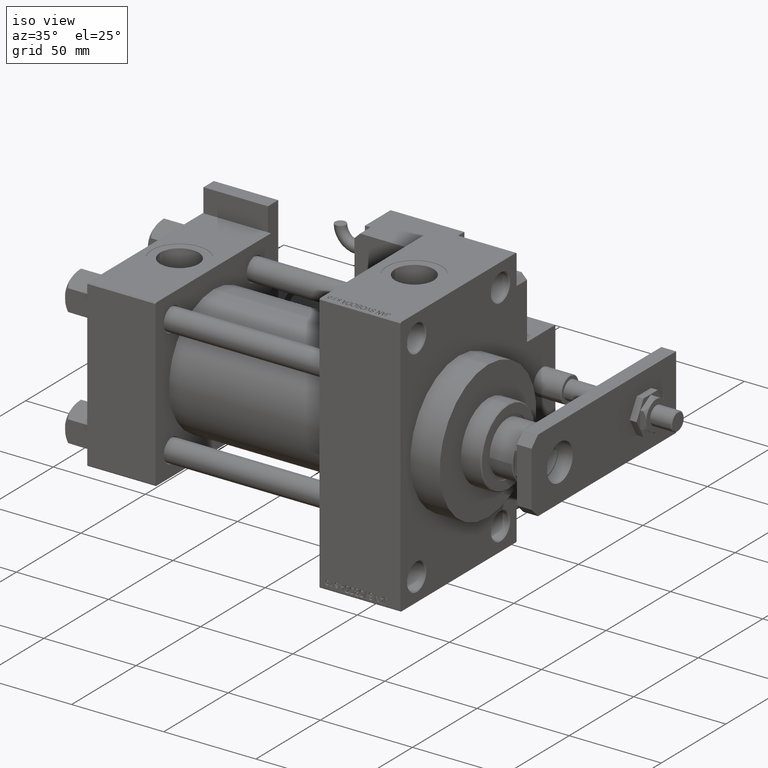
[diagram: clean part render]
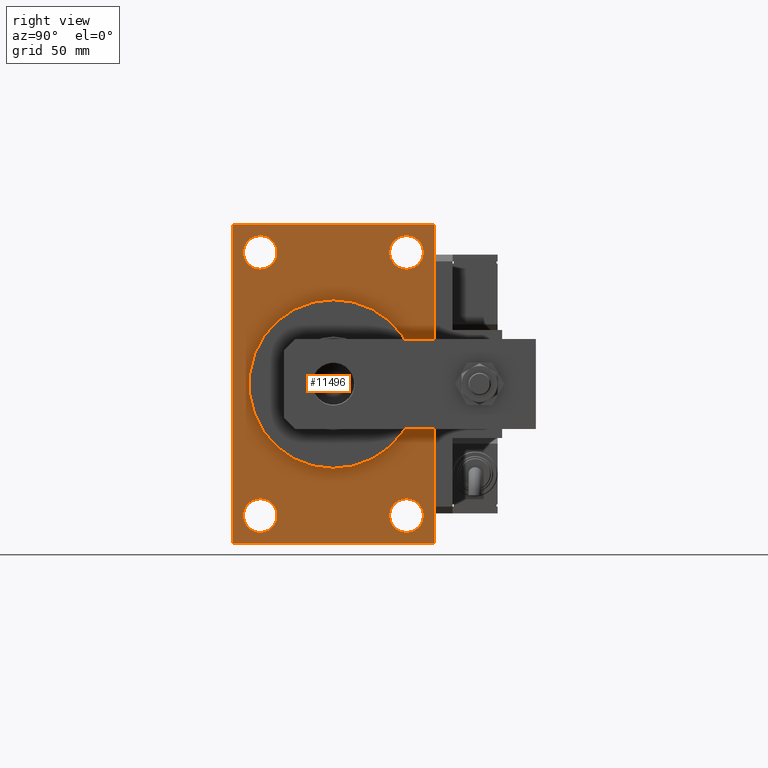
[diagram: tour spotlight — one face highlighted and labeled with its STEP entity id]
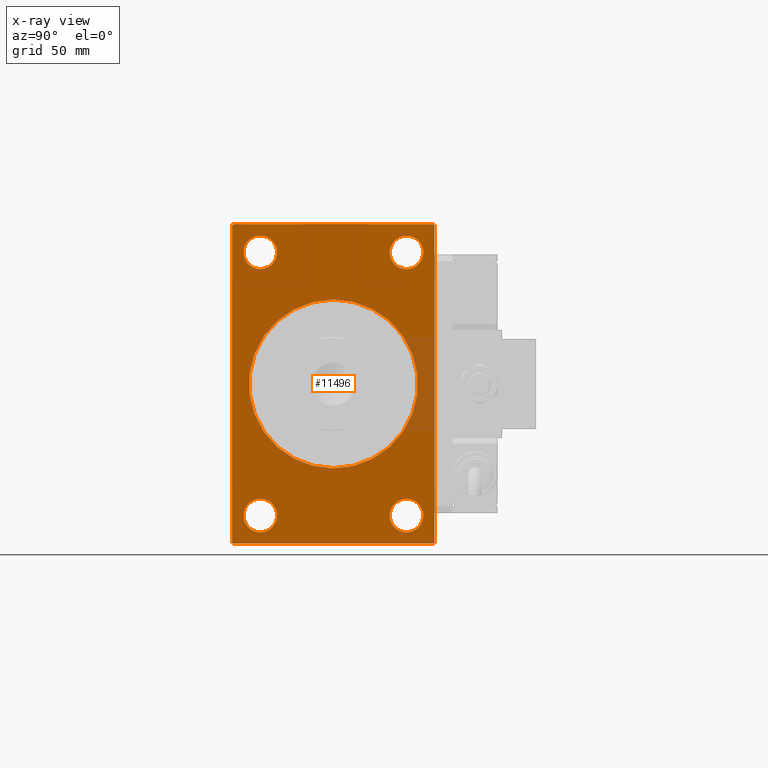
[diagram: x-ray of the same camera — body ghosted, this tour face saturated]
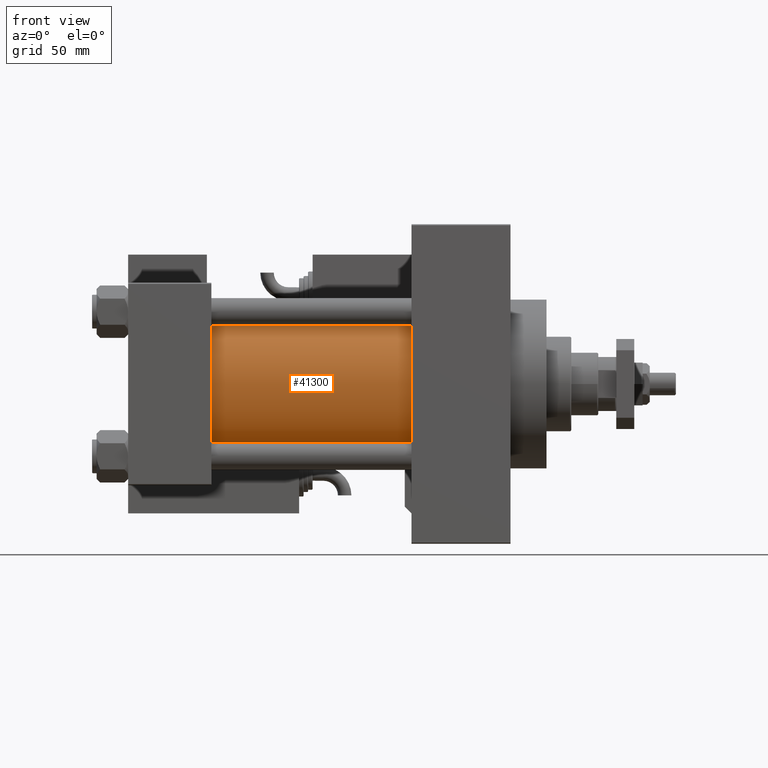
[diagram: tour spotlight — one face highlighted and labeled with its STEP entity id]
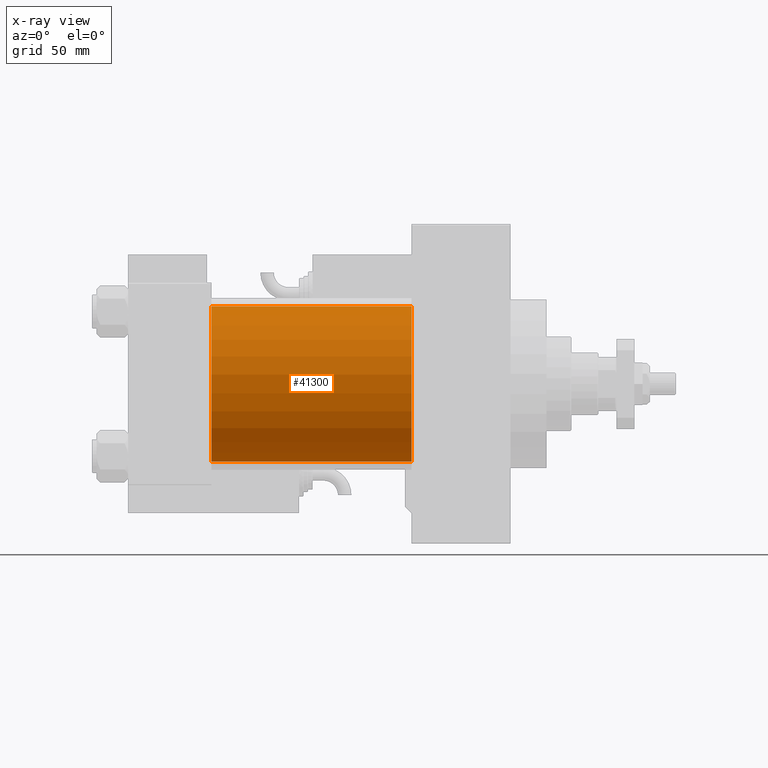
[diagram: x-ray of the same camera — body ghosted, this tour face saturated]
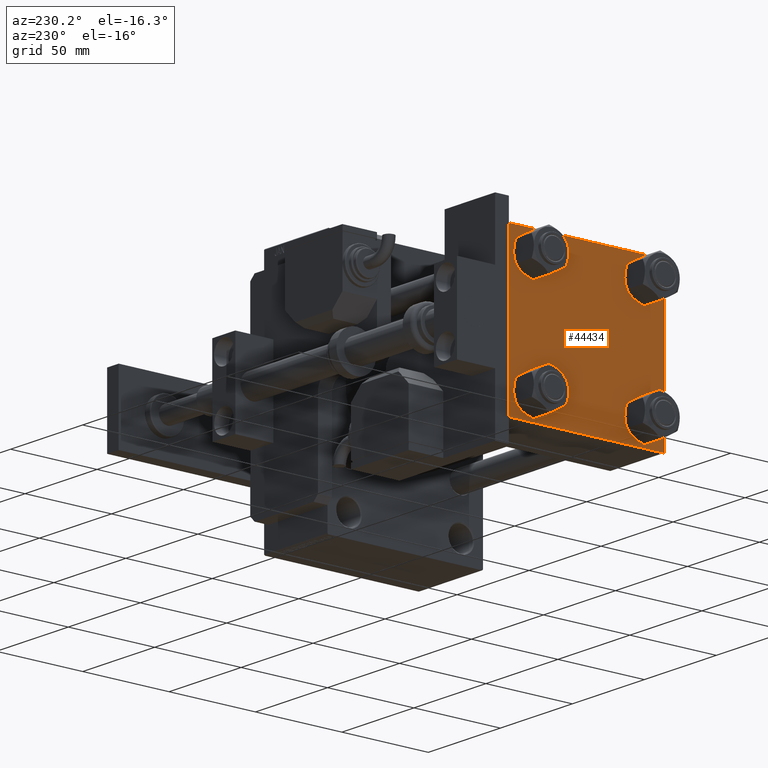
[diagram: tour spotlight — one face highlighted and labeled with its STEP entity id]
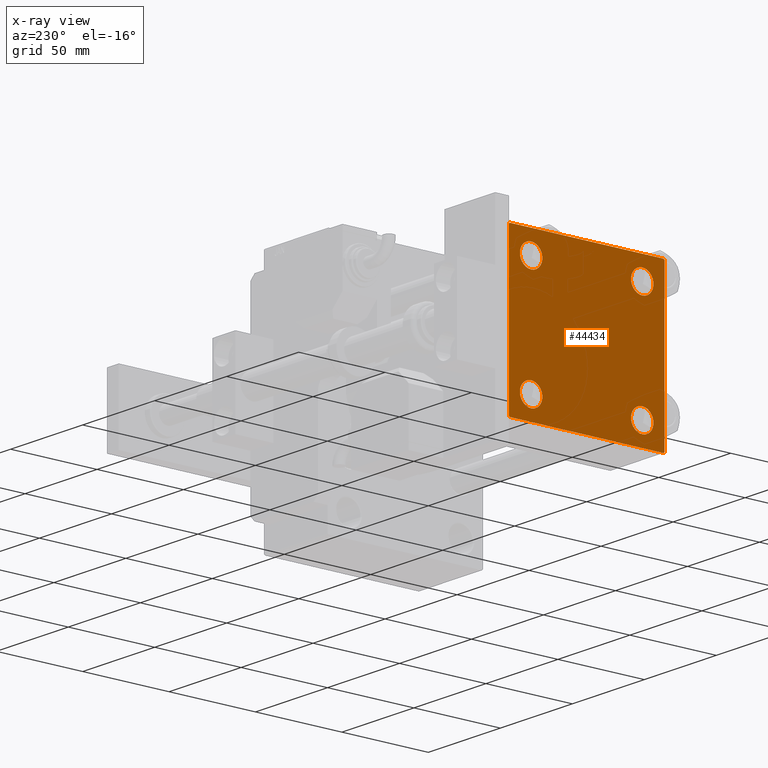
[diagram: x-ray of the same camera — body ghosted, this tour face saturated]
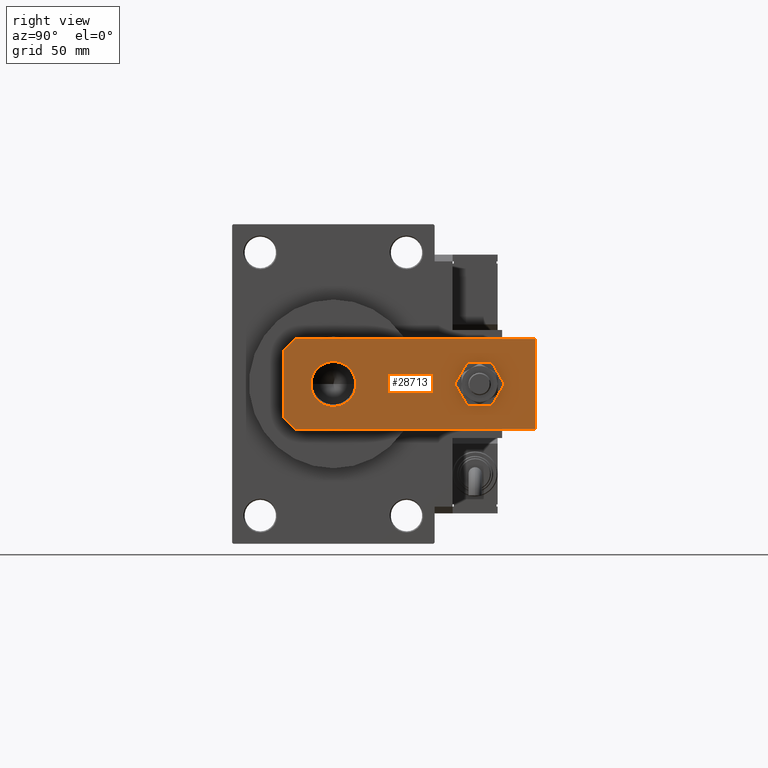
[diagram: tour spotlight — one face highlighted and labeled with its STEP entity id]
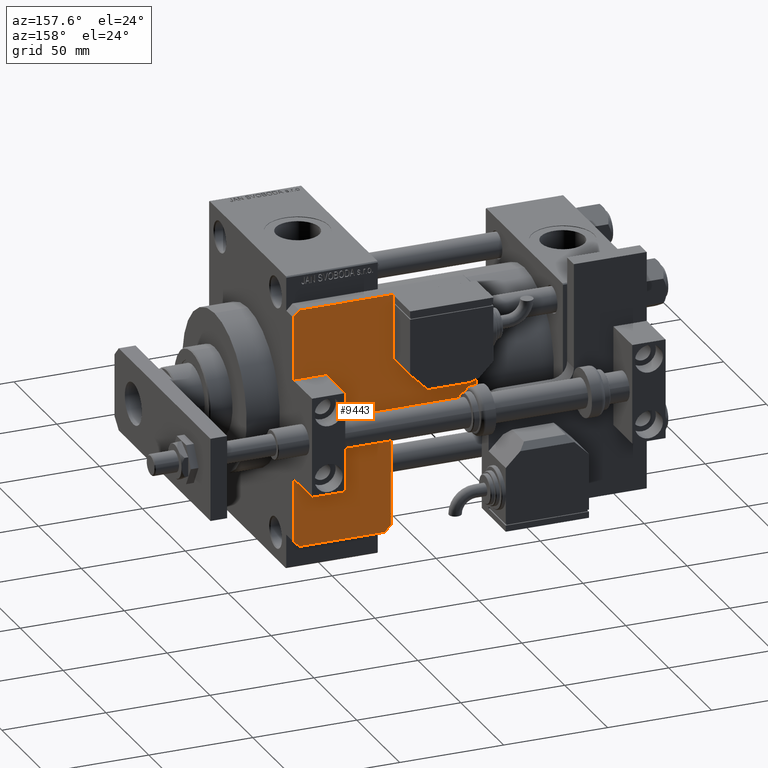
[diagram: tour spotlight — one face highlighted and labeled with its STEP entity id]
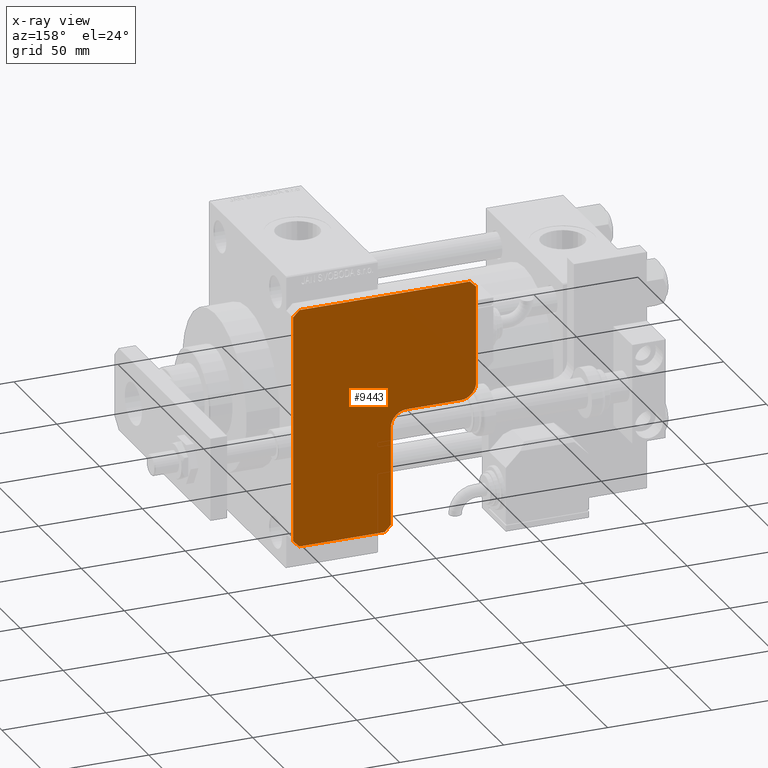
[diagram: x-ray of the same camera — body ghosted, this tour face saturated]
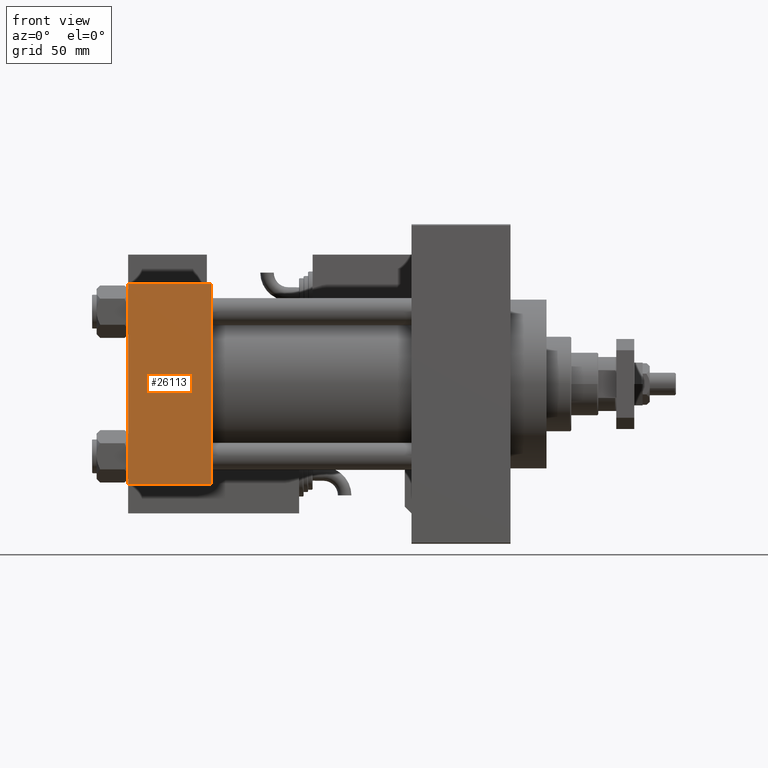
[diagram: tour spotlight — one face highlighted and labeled with its STEP entity id]
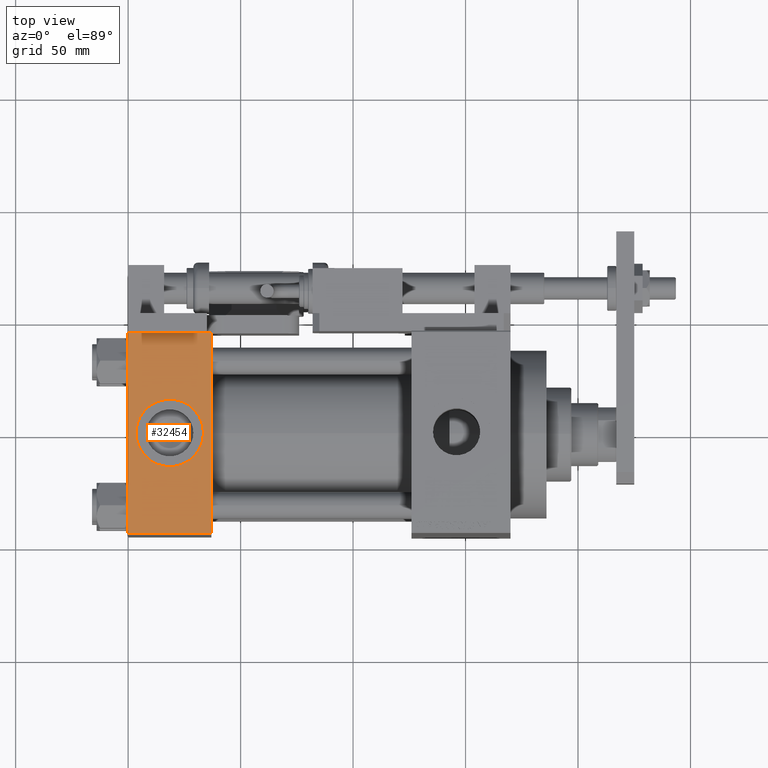
[diagram: tour spotlight — one face highlighted and labeled with its STEP entity id]
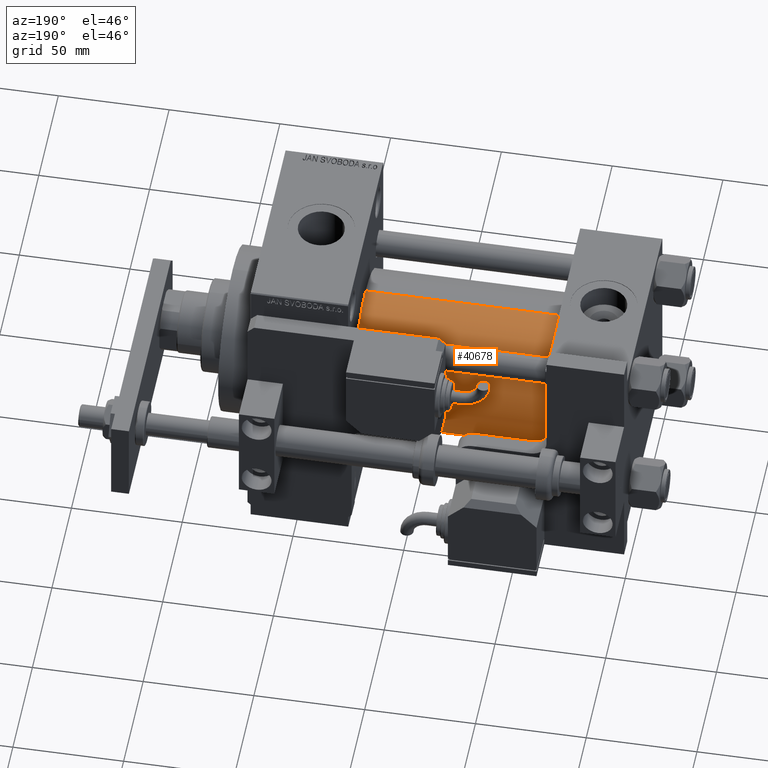
[diagram: tour spotlight — one face highlighted and labeled with its STEP entity id]
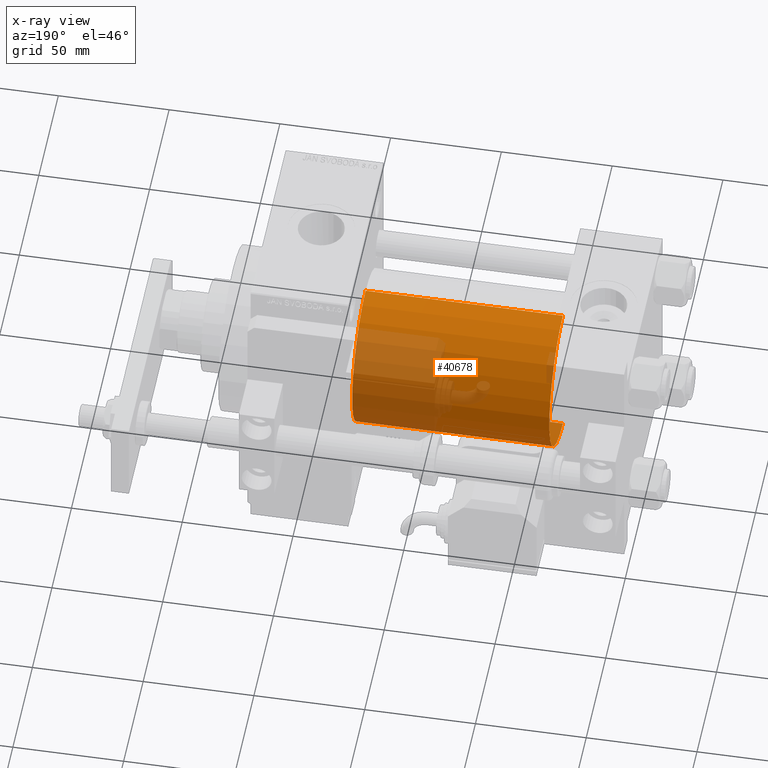
[diagram: x-ray of the same camera — body ghosted, this tour face saturated]
A machine part: a face-by-face anatomy tour. The part has 1432 B-rep faces; the first image is the clean iso view, then the 8 largest visible faces are spotlighted one at a time (largest first), each with its STEP entity span.

Face 1 — right view, entity #11496. An x-ray twin of the same camera follows (body ghosted, this face saturated) — the face is partly hidden behind the body. In plain terms, the highlighted planar face has unit normal (-1, 0, 0).
Definition (entity closure, byte-faithful):
#214 = EDGE_CURVE ( 'NONE', #14290, #47713, #2050, .T. ) ;
#408 = CARTESIAN_POINT ( 'NONE',  ( 169.9999999999999716, 45.00000000000000000, 71.00000000000000000 ) ) ;
#453 = CARTESIAN_POINT ( 'NONE',  ( 169.9999999999999716, -44.49999999999994316, 71.00000000000000000 ) ) ;
#460 = VERTEX_POINT ( 'NONE', #32262 ) ;
#478 = DIRECTION ( 'NONE',  ( -0.000000000000000000, 0.7071067811865474617, 0.7071067811865474617 ) ) ;
#936 = AXIS2_PLACEMENT_3D ( 'NONE', #20321, #12532, #46449 ) ;
#951 = AXIS2_PLACEMENT_3D ( 'NONE', #17849, #30353, #4523 ) ;
#2050 = LINE ( 'NONE', #27623, #11466 ) ;
#2100 = CARTESIAN_POINT ( 'NONE',  ( 169.9999999999999716, -32.50000000000001421, -58.49999999999998579 ) ) ;
#2369 = DIRECTION ( 'NONE',  ( 0.000000000000000000, 0.000000000000000000, 1.000000000000000000 ) ) ;
#2421 = CARTESIAN_POINT ( 'NONE',  ( 169.9999999999999716, 45.00000000000000000, 70.50000000000000000 ) ) ;
#3998 = EDGE_CURVE ( 'NONE', #29359, #17949, #37210, .T. ) ;
#4010 = EDGE_LOOP ( 'NONE', ( #13578, #41688 ) ) ;
#4029 = DIRECTION ( 'NONE',  ( 0.000000000000000000, 0.000000000000000000, -1.000000000000000000 ) ) ;
#4215 = EDGE_CURVE ( 'NONE', #8534, #19946, #6876, .T. ) ;
#4244 = CARTESIAN_POINT ( 'NONE',  ( 169.9999999999999716, 0.000000000000000000, 0.000000000000000000 ) ) ;
#4357 = ORIENTED_EDGE ( 'NONE', *, *, #11749, .F. ) ;
#4523 = DIRECTION ( 'NONE',  ( 0.000000000000000000, 0.000000000000000000, 1.000000000000000000 ) ) ;
#4774 = ORIENTED_EDGE ( 'NONE', *, *, #4215, .T. ) ;
#4876 = CARTESIAN_POINT ( 'NONE',  ( 169.9999999999999716, 45.00000000000000000, 71.00000000000000000 ) ) ;
#5023 = CARTESIAN_POINT ( 'NONE',  ( 169.9999999999999716, 32.49999999999998579, 58.50000000000000711 ) ) ;
#5243 = ORIENTED_EDGE ( 'NONE', *, *, #5845, .F. ) ;
#5285 = CIRCLE ( 'NONE', #52367, 7.500000000000000000 ) ;
#5845 = EDGE_CURVE ( 'NONE', #15237, #42644, #25975, .T. ) ;
#6876 = LINE ( 'NONE', #20189, #15037 ) ;
#6877 = VECTOR ( 'NONE', #27295, 1000.000000000000000 ) ;
#8480 = CARTESIAN_POINT ( 'NONE',  ( 169.9999999999999716, 44.50000000000000000, 71.00000000000000000 ) ) ;
#8534 = VERTEX_POINT ( 'NONE', #24595 ) ;
#10109 = CARTESIAN_POINT ( 'NONE',  ( 169.9999999999999716, 44.50000000000000000, 71.00000000000000000 ) ) ;
#10520 = DIRECTION ( 'NONE',  ( 0.000000000000000000, 0.000000000000000000, -1.000000000000000000 ) ) ;
#11402 = DIRECTION ( 'NONE',  ( -1.000000000000000000, 0.000000000000000000, -0.000000000000000000 ) ) ;
#11466 = VECTOR ( 'NONE', #52943, 1000.000000000000000 ) ;
#11496 = ADVANCED_FACE ( 'NONE', ( #24185, #14271, #31207, #27047, #39285, #32512 ), #48189, .F. ) ;
#11749 = EDGE_CURVE ( 'NONE', #42644, #15237, #41975, .T. ) ;
#11839 = VERTEX_POINT ( 'NONE', #453 ) ;
#12067 = EDGE_CURVE ( 'NONE', #17949, #29359, #39353, .T. ) ;
#12422 = ORIENTED_EDGE ( 'NONE', *, *, #38954, .T. ) ;
#12532 = DIRECTION ( 'NONE',  ( -1.000000000000000000, -0.000000000000000000, -0.000000000000000000 ) ) ;
#12736 = LINE ( 'NONE', #26056, #54869 ) ;
#12859 = VERTEX_POINT ( 'NONE', #22697 ) ;
#12877 = DIRECTION ( 'NONE',  ( 1.000000000000000000, 0.000000000000000000, 0.000000000000000000 ) ) ;
#13416 = CARTESIAN_POINT ( 'NONE',  ( 169.9999999999999716, -44.50000000000000000, -71.00000000000000000 ) ) ;
#13578 = ORIENTED_EDGE ( 'NONE', *, *, #46360, .T. ) ;
#14000 = ORIENTED_EDGE ( 'NONE', *, *, #15973, .T. ) ;
#14271 = FACE_BOUND ( 'NONE', #37169, .T. ) ;
#14290 = VERTEX_POINT ( 'NONE', #39967 ) ;
#14627 = DIRECTION ( 'NONE',  ( -1.000000000000000000, -0.000000000000000000, -0.000000000000000000 ) ) ;
#15037 = VECTOR ( 'NONE', #28253, 1000.000000000000000 ) ;
#15237 = VERTEX_POINT ( 'NONE', #35250 ) ;
#15973 = EDGE_CURVE ( 'NONE', #43179, #27068, #47636, .T. ) ;
#16139 = ORIENTED_EDGE ( 'NONE', *, *, #214, .F. ) ;
#16299 = CARTESIAN_POINT ( 'NONE',  ( 169.9999999999999716, -44.49999999999997158, -71.00000000000000000 ) ) ;
#17343 = VERTEX_POINT ( 'NONE', #49181 ) ;
#17573 = LINE ( 'NONE', #13416, #28091 ) ;
#17625 = EDGE_CURVE ( 'NONE', #12859, #48756, #5285, .T. ) ;
#17804 = DIRECTION ( 'NONE',  ( 0.000000000000000000, 0.000000000000000000, 1.000000000000000000 ) ) ;
#17849 = CARTESIAN_POINT ( 'NONE',  ( 169.9999999999999716, 32.49999999999998579, 58.50000000000000711 ) ) ;
#17949 = VERTEX_POINT ( 'NONE', #50205 ) ;
#18003 = AXIS2_PLACEMENT_3D ( 'NONE', #40255, #19120, #10520 ) ;
#18016 = VECTOR ( 'NONE', #45810, 1000.000000000000114 ) ;
#18696 = CIRCLE ( 'NONE', #951, 7.499999999999992895 ) ;
#19120 = DIRECTION ( 'NONE',  ( 1.000000000000000000, 0.000000000000000000, 0.000000000000000000 ) ) ;
#19272 = EDGE_CURVE ( 'NONE', #17343, #49303, #18696, .T. ) ;
#19764 = ORIENTED_EDGE ( 'NONE', *, *, #47483, .T. ) ;
#19946 = VERTEX_POINT ( 'NONE', #46923 ) ;
#19986 = DIRECTION ( 'NONE',  ( 0.000000000000000000, 0.000000000000000000, 1.000000000000000000 ) ) ;
#20122 = AXIS2_PLACEMENT_3D ( 'NONE', #50853, #37207, #19986 ) ;
#20189 = CARTESIAN_POINT ( 'NONE',  ( 169.9999999999999716, -45.00000000000000000, 71.00000000000000000 ) ) ;
#20321 = CARTESIAN_POINT ( 'NONE',  ( 169.9999999999999716, -32.50000000000001421, -58.49999999999998579 ) ) ;
#20555 = CARTESIAN_POINT ( 'NONE',  ( 169.9999999999999716, 32.49999999999998579, -65.99999999999997158 ) ) ;
#20701 = AXIS2_PLACEMENT_3D ( 'NONE', #2100, #14627, #2369 ) ;
#20871 = CARTESIAN_POINT ( 'NONE',  ( 169.9999999999999716, -32.50000000000001421, -50.99999999999997868 ) ) ;
#21161 = CARTESIAN_POINT ( 'NONE',  ( 169.9999999999999716, 32.49999999999998579, 51.00000000000001421 ) ) ;
#21207 = DIRECTION ( 'NONE',  ( 0.000000000000000000, 0.000000000000000000, -1.000000000000000000 ) ) ;
#21302 = AXIS2_PLACEMENT_3D ( 'NONE', #4244, #12877, #21207 ) ;
#22286 = DIRECTION ( 'NONE',  ( -1.000000000000000000, -0.000000000000000000, -0.000000000000000000 ) ) ;
#22529 = EDGE_LOOP ( 'NONE', ( #36914, #45229 ) ) ;
#22664 = AXIS2_PLACEMENT_3D ( 'NONE', #5023, #52018, #17804 ) ;
#22679 = CARTESIAN_POINT ( 'NONE',  ( 169.9999999999999716, 32.49999999999998579, -58.49999999999998579 ) ) ;
#22697 = CARTESIAN_POINT ( 'NONE',  ( 169.9999999999999716, -32.50000000000001421, 66.00000000000001421 ) ) ;
#22790 = CIRCLE ( 'NONE', #20122, 7.500000000000007105 ) ;
#22821 = CARTESIAN_POINT ( 'NONE',  ( 169.9999999999999716, 32.49999999999998579, -50.99999999999997868 ) ) ;
#24185 = FACE_BOUND ( 'NONE', #22529, .T. ) ;
#24595 = CARTESIAN_POINT ( 'NONE',  ( 169.9999999999999716, -45.00000000000000000, 70.49999999999997158 ) ) ;
#25975 = CIRCLE ( 'NONE', #21302, 37.50000000000000711 ) ;
#26056 = CARTESIAN_POINT ( 'NONE',  ( 169.9999999999999716, 45.00000000000000000, -70.49999999999997158 ) ) ;
#26271 = VECTOR ( 'NONE', #4029, 1000.000000000000000 ) ;
#27047 = FACE_BOUND ( 'NONE', #36623, .T. ) ;
#27068 = VERTEX_POINT ( 'NONE', #8480 ) ;
#27295 = DIRECTION ( 'NONE',  ( 0.000000000000000000, -1.000000000000000000, 0.000000000000000000 ) ) ;
#27525 = EDGE_CURVE ( 'NONE', #11839, #8534, #52047, .T. ) ;
#27623 = CARTESIAN_POINT ( 'NONE',  ( 169.9999999999999716, 45.00000000000000000, -71.00000000000000000 ) ) ;
#28091 = VECTOR ( 'NONE', #51512, 1000.000000000000114 ) ;
#28253 = DIRECTION ( 'NONE',  ( 0.000000000000000000, 0.000000000000000000, -1.000000000000000000 ) ) ;
#28343 = DIRECTION ( 'NONE',  ( -0.000000000000000000, 0.000000000000000000, 1.000000000000000000 ) ) ;
#29359 = VERTEX_POINT ( 'NONE', #20871 ) ;
#29554 = CARTESIAN_POINT ( 'NONE',  ( 169.9999999999999716, 4.592425496802575156E-15, -37.50000000000000711 ) ) ;
#30353 = DIRECTION ( 'NONE',  ( -1.000000000000000000, -0.000000000000000000, -0.000000000000000000 ) ) ;
#31207 = FACE_BOUND ( 'NONE', #4010, .T. ) ;
#31555 = DIRECTION ( 'NONE',  ( -1.000000000000000000, -0.000000000000000000, -0.000000000000000000 ) ) ;
#32197 = CARTESIAN_POINT ( 'NONE',  ( 169.9999999999999716, -45.00000000000000000, 70.49999999999997158 ) ) ;
#32262 = CARTESIAN_POINT ( 'NONE',  ( 169.9999999999999716, 45.00000000000000000, -70.49999999999997158 ) ) ;
#32507 = EDGE_CURVE ( 'NONE', #49303, #17343, #44883, .T. ) ;
#32512 = FACE_OUTER_BOUND ( 'NONE', #44648, .T. ) ;
#34074 = CARTESIAN_POINT ( 'NONE',  ( 169.9999999999999716, -32.50000000000001421, 51.00000000000001421 ) ) ;
#35203 = CARTESIAN_POINT ( 'NONE',  ( 169.9999999999999716, -32.50000000000001421, 58.50000000000001421 ) ) ;
#35250 = CARTESIAN_POINT ( 'NONE',  ( 169.9999999999999716, 0.000000000000000000, 37.50000000000000711 ) ) ;
#36623 = EDGE_LOOP ( 'NONE', ( #40410, #51830 ) ) ;
#36643 = EDGE_LOOP ( 'NONE', ( #5243, #4357 ) ) ;
#36914 = ORIENTED_EDGE ( 'NONE', *, *, #44243, .T. ) ;
#37169 = EDGE_LOOP ( 'NONE', ( #44511, #41503 ) ) ;
#37207 = DIRECTION ( 'NONE',  ( -1.000000000000000000, -0.000000000000000000, -0.000000000000000000 ) ) ;
#37210 = CIRCLE ( 'NONE', #936, 7.500000000000007105 ) ;
#38954 = EDGE_CURVE ( 'NONE', #27068, #11839, #52892, .T. ) ;
#39285 = FACE_BOUND ( 'NONE', #36643, .T. ) ;
#39353 = CIRCLE ( 'NONE', #20701, 7.500000000000007105 ) ;
#39498 = ORIENTED_EDGE ( 'NONE', *, *, #45031, .T. ) ;
#39967 = CARTESIAN_POINT ( 'NONE',  ( 169.9999999999999716, 44.49999999999997158, -71.00000000000000000 ) ) ;
#40255 = CARTESIAN_POINT ( 'NONE',  ( 169.9999999999999716, 0.000000000000000000, 0.000000000000000000 ) ) ;
#40410 = ORIENTED_EDGE ( 'NONE', *, *, #32507, .T. ) ;
#41503 = ORIENTED_EDGE ( 'NONE', *, *, #3998, .T. ) ;
#41542 = ORIENTED_EDGE ( 'NONE', *, *, #44644, .F. ) ;
#41688 = ORIENTED_EDGE ( 'NONE', *, *, #53013, .T. ) ;
#41975 = CIRCLE ( 'NONE', #18003, 37.50000000000000711 ) ;
#42085 = ORIENTED_EDGE ( 'NONE', *, *, #27525, .T. ) ;
#42644 = VERTEX_POINT ( 'NONE', #29554 ) ;
#43005 = DIRECTION ( 'NONE',  ( -1.000000000000000000, -0.000000000000000000, -0.000000000000000000 ) ) ;
#43179 = VERTEX_POINT ( 'NONE', #2421 ) ;
#43272 = DIRECTION ( 'NONE',  ( 0.000000000000000000, 0.000000000000000000, 1.000000000000000000 ) ) ;
#44004 = CARTESIAN_POINT ( 'NONE',  ( 169.9999999999999716, 0.000000000000000000, 0.000000000000000000 ) ) ;
#44239 = CIRCLE ( 'NONE', #54946, 7.500000000000007105 ) ;
#44243 = EDGE_CURVE ( 'NONE', #48756, #12859, #47582, .T. ) ;
#44350 = DIRECTION ( 'NONE',  ( 0.000000000000000000, 0.000000000000000000, 1.000000000000000000 ) ) ;
#44511 = ORIENTED_EDGE ( 'NONE', *, *, #12067, .T. ) ;
#44644 = EDGE_CURVE ( 'NONE', #43179, #460, #54933, .T. ) ;
#44648 = EDGE_LOOP ( 'NONE', ( #4774, #39498, #16139, #19764, #41542, #14000, #12422, #42085 ) ) ;
#44883 = CIRCLE ( 'NONE', #22664, 7.499999999999992895 ) ;
#45031 = EDGE_CURVE ( 'NONE', #19946, #47713, #17573, .T. ) ;
#45229 = ORIENTED_EDGE ( 'NONE', *, *, #17625, .T. ) ;
#45586 = VECTOR ( 'NONE', #47088, 1000.000000000000114 ) ;
#45810 = DIRECTION ( 'NONE',  ( -0.000000000000000000, -0.7071067811865474617, -0.7071067811865474617 ) ) ;
#46360 = EDGE_CURVE ( 'NONE', #50933, #53189, #22790, .T. ) ;
#46449 = DIRECTION ( 'NONE',  ( 0.000000000000000000, 0.000000000000000000, 1.000000000000000000 ) ) ;
#46923 = CARTESIAN_POINT ( 'NONE',  ( 169.9999999999999716, -45.00000000000000000, -70.50000000000000000 ) ) ;
#47038 = CARTESIAN_POINT ( 'NONE',  ( 169.9999999999999716, -32.50000000000001421, 58.50000000000001421 ) ) ;
#47088 = DIRECTION ( 'NONE',  ( 0.000000000000000000, -0.7071067811865474617, 0.7071067811865474617 ) ) ;
#47483 = EDGE_CURVE ( 'NONE', #14290, #460, #12736, .T. ) ;
#47582 = CIRCLE ( 'NONE', #52015, 7.500000000000000000 ) ;
#47636 = LINE ( 'NONE', #10109, #45586 ) ;
#47713 = VERTEX_POINT ( 'NONE', #16299 ) ;
#48189 = PLANE ( 'NONE',  #54424 ) ;
#48756 = VERTEX_POINT ( 'NONE', #34074 ) ;
#49181 = CARTESIAN_POINT ( 'NONE',  ( 169.9999999999999716, 32.49999999999998579, 66.00000000000000000 ) ) ;
#49303 = VERTEX_POINT ( 'NONE', #21161 ) ;
#50205 = CARTESIAN_POINT ( 'NONE',  ( 169.9999999999999716, -32.50000000000001421, -65.99999999999997158 ) ) ;
#50853 = CARTESIAN_POINT ( 'NONE',  ( 169.9999999999999716, 32.49999999999998579, -58.49999999999998579 ) ) ;
#50933 = VERTEX_POINT ( 'NONE', #20555 ) ;
#51512 = DIRECTION ( 'NONE',  ( 0.000000000000000000, 0.7071067811865474617, -0.7071067811865474617 ) ) ;
#51830 = ORIENTED_EDGE ( 'NONE', *, *, #19272, .T. ) ;
#52015 = AXIS2_PLACEMENT_3D ( 'NONE', #47038, #22286, #52049 ) ;
#52018 = DIRECTION ( 'NONE',  ( -1.000000000000000000, -0.000000000000000000, -0.000000000000000000 ) ) ;
#52047 = LINE ( 'NONE', #32197, #18016 ) ;
#52049 = DIRECTION ( 'NONE',  ( 0.000000000000000000, 0.000000000000000000, 1.000000000000000000 ) ) ;
#52367 = AXIS2_PLACEMENT_3D ( 'NONE', #35203, #43005, #43272 ) ;
#52892 = LINE ( 'NONE', #4876, #6877 ) ;
#52943 = DIRECTION ( 'NONE',  ( 0.000000000000000000, -1.000000000000000000, 0.000000000000000000 ) ) ;
#53013 = EDGE_CURVE ( 'NONE', #53189, #50933, #44239, .T. ) ;
#53189 = VERTEX_POINT ( 'NONE', #22821 ) ;
#54424 = AXIS2_PLACEMENT_3D ( 'NONE', #44004, #11402, #28343 ) ;
#54869 = VECTOR ( 'NONE', #478, 1000.000000000000114 ) ;
#54933 = LINE ( 'NONE', #408, #26271 ) ;
#54946 = AXIS2_PLACEMENT_3D ( 'NONE', #22679, #31555, #44350 ) ;

Face 2 — front view, entity #41300. An x-ray twin of the same camera follows (body ghosted, this face saturated) — the face is partly hidden behind the body. In plain terms, the highlighted cylindrical surface (partial cylindrical patch) has radius 34.5 mm, axis along (-1, -0, -0).
Definition (entity closure, byte-faithful):
#648 = ORIENTED_EDGE ( 'NONE', *, *, #31754, .T. ) ;
#1147 = VERTEX_POINT ( 'NONE', #33372 ) ;
#1285 = ORIENTED_EDGE ( 'NONE', *, *, #31653, .F. ) ;
#1857 = EDGE_CURVE ( 'NONE', #45795, #28415, #4442, .T. ) ;
#2497 = CIRCLE ( 'NONE', #42419, 34.50000000000000000 ) ;
#3877 = CARTESIAN_POINT ( 'NONE',  ( 126.0000000000000000, -2.602085213965210642E-15, 0.000000000000000000 ) ) ;
#4442 = CIRCLE ( 'NONE', #36395, 34.50000000000000000 ) ;
#4937 = CARTESIAN_POINT ( 'NONE',  ( 126.0000000000000000, -2.602085213965210642E-15, 0.000000000000000000 ) ) ;
#8663 = LINE ( 'NONE', #29767, #31498 ) ;
#11626 = CARTESIAN_POINT ( 'NONE',  ( 126.0000000000000000, -2.602085213965210642E-15, 34.50000000000000000 ) ) ;
#12279 = DIRECTION ( 'NONE',  ( -1.000000000000000000, -0.000000000000000000, -0.000000000000000000 ) ) ;
#13280 = CYLINDRICAL_SURFACE ( 'NONE', #39751, 34.50000000000000000 ) ;
#14384 = CARTESIAN_POINT ( 'NONE',  ( 37.00000000000000711, -2.602085213965210642E-15, 34.50000000000000000 ) ) ;
#14937 = DIRECTION ( 'NONE',  ( 1.000000000000000000, -0.000000000000000000, 0.000000000000000000 ) ) ;
#17569 = VERTEX_POINT ( 'NONE', #11626 ) ;
#20571 = ORIENTED_EDGE ( 'NONE', *, *, #1857, .T. ) ;
#21893 = DIRECTION ( 'NONE',  ( -1.000000000000000000, -0.000000000000000000, -0.000000000000000000 ) ) ;
#23223 = ORIENTED_EDGE ( 'NONE', *, *, #51843, .F. ) ;
#23430 = CARTESIAN_POINT ( 'NONE',  ( 126.0000000000000000, 1.622946243093158675E-15, -34.50000000000000000 ) ) ;
#24361 = CARTESIAN_POINT ( 'NONE',  ( 37.00000000000000711, -2.602085213965210642E-15, 0.000000000000000000 ) ) ;
#27588 = LINE ( 'NONE', #23430, #39517 ) ;
#28415 = VERTEX_POINT ( 'NONE', #34461 ) ;
#29767 = CARTESIAN_POINT ( 'NONE',  ( 126.0000000000000000, -2.602085213965210642E-15, 34.50000000000000000 ) ) ;
#31498 = VECTOR ( 'NONE', #12279, 1000.000000000000000 ) ;
#31653 = EDGE_CURVE ( 'NONE', #1147, #28415, #27588, .T. ) ;
#31754 = EDGE_CURVE ( 'NONE', #17569, #45795, #8663, .T. ) ;
#32837 = DIRECTION ( 'NONE',  ( -1.000000000000000000, -0.000000000000000000, -0.000000000000000000 ) ) ;
#33372 = CARTESIAN_POINT ( 'NONE',  ( 126.0000000000000000, 1.622946243093158675E-15, -34.50000000000000000 ) ) ;
#34461 = CARTESIAN_POINT ( 'NONE',  ( 37.00000000000000711, 1.622946243093158675E-15, -34.50000000000000000 ) ) ;
#36395 = AXIS2_PLACEMENT_3D ( 'NONE', #24361, #14937, #44947 ) ;
#38843 = DIRECTION ( 'NONE',  ( 0.000000000000000000, 0.000000000000000000, 1.000000000000000000 ) ) ;
#39517 = VECTOR ( 'NONE', #32837, 1000.000000000000000 ) ;
#39695 = EDGE_LOOP ( 'NONE', ( #1285, #23223, #648, #20571 ) ) ;
#39751 = AXIS2_PLACEMENT_3D ( 'NONE', #4937, #21893, #38843 ) ;
#41300 = ADVANCED_FACE ( 'NONE', ( #51384 ), #13280, .T. ) ;
#42419 = AXIS2_PLACEMENT_3D ( 'NONE', #3877, #46131, #51151 ) ;
#44947 = DIRECTION ( 'NONE',  ( 0.000000000000000000, 0.000000000000000000, 1.000000000000000000 ) ) ;
#45795 = VERTEX_POINT ( 'NONE', #14384 ) ;
#46131 = DIRECTION ( 'NONE',  ( 1.000000000000000000, 0.000000000000000000, 0.000000000000000000 ) ) ;
#51151 = DIRECTION ( 'NONE',  ( 0.000000000000000000, 0.000000000000000000, -1.000000000000000000 ) ) ;
#51384 = FACE_OUTER_BOUND ( 'NONE', #39695, .T. ) ;
#51843 = EDGE_CURVE ( 'NONE', #17569, #1147, #2497, .T. ) ;

Face 3 — auxiliary view, entity #44434. An x-ray twin of the same camera follows (body ghosted, this face saturated) — the face is partly hidden behind the body. In plain terms, the highlighted planar face has unit normal (-1, 0, 0).
Definition (entity closure, byte-faithful):
#199 = AXIS2_PLACEMENT_3D ( 'NONE', #11604, #7445, #28278 ) ;
#1005 = VERTEX_POINT ( 'NONE', #33779 ) ;
#1257 = DIRECTION ( 'NONE',  ( 0.000000000000000000, 0.000000000000000000, 1.000000000000000000 ) ) ;
#1375 = CARTESIAN_POINT ( 'NONE',  ( 0.000000000000000000, -32.14999999999997726, 25.65000000000002700 ) ) ;
#2051 = CIRCLE ( 'NONE', #42018, 6.499999999999977796 ) ;
#2713 = EDGE_CURVE ( 'NONE', #44878, #3412, #21537, .T. ) ;
#3195 = VERTEX_POINT ( 'NONE', #46915 ) ;
#3412 = VERTEX_POINT ( 'NONE', #33230 ) ;
#3594 = CIRCLE ( 'NONE', #44444, 6.500000000000019540 ) ;
#4167 = FACE_BOUND ( 'NONE', #10816, .T. ) ;
#4602 = EDGE_CURVE ( 'NONE', #1005, #45241, #20943, .T. ) ;
#5256 = EDGE_LOOP ( 'NONE', ( #8742, #52659 ) ) ;
#5295 = DIRECTION ( 'NONE',  ( -0.000000000000000000, -0.7071067811865474617, -0.7071067811865474617 ) ) ;
#6199 = CARTESIAN_POINT ( 'NONE',  ( 0.000000000000000000, 32.14999999999999147, -25.64999999999997726 ) ) ;
#6284 = DIRECTION ( 'NONE',  ( 1.000000000000000000, -0.000000000000000000, 0.000000000000000000 ) ) ;
#6447 = EDGE_CURVE ( 'NONE', #31343, #36430, #48021, .T. ) ;
#6677 = EDGE_CURVE ( 'NONE', #3195, #50439, #3594, .T. ) ;
#7445 = DIRECTION ( 'NONE',  ( 1.000000000000000000, -0.000000000000000000, 0.000000000000000000 ) ) ;
#8042 = CARTESIAN_POINT ( 'NONE',  ( 0.000000000000000000, -44.74999999999873523, -44.75000000000122924 ) ) ;
#8590 = VECTOR ( 'NONE', #32487, 1000.000000000000000 ) ;
#8742 = ORIENTED_EDGE ( 'NONE', *, *, #18646, .T. ) ;
#8933 = LINE ( 'NONE', #13916, #22943 ) ;
#9351 = ORIENTED_EDGE ( 'NONE', *, *, #2713, .T. ) ;
#9409 = CIRCLE ( 'NONE', #20949, 6.499999999999977796 ) ;
#9613 = CARTESIAN_POINT ( 'NONE',  ( 0.000000000000000000, -32.14999999999997726, -32.15000000000000568 ) ) ;
#9929 = DIRECTION ( 'NONE',  ( 1.000000000000000000, -0.000000000000000000, 0.000000000000000000 ) ) ;
#10407 = CARTESIAN_POINT ( 'NONE',  ( 0.000000000000000000, 44.49999999999997158, 45.00000000000000711 ) ) ;
#10478 = CARTESIAN_POINT ( 'NONE',  ( 0.000000000000000000, 45.00000000000000000, -44.99999999999999289 ) ) ;
#10721 = VECTOR ( 'NONE', #12607, 1000.000000000000000 ) ;
#10816 = EDGE_LOOP ( 'NONE', ( #23104, #46537 ) ) ;
#11297 = DIRECTION ( 'NONE',  ( 0.000000000000000000, -1.000000000000000000, -7.709882115452476934E-17 ) ) ;
#11604 = CARTESIAN_POINT ( 'NONE',  ( 0.000000000000000000, -32.14999999999997726, 32.15000000000000568 ) ) ;
#11735 = CARTESIAN_POINT ( 'NONE',  ( 0.000000000000000000, -44.49999999999997158, 44.99999999999998579 ) ) ;
#12076 = EDGE_CURVE ( 'NONE', #31988, #41764, #2051, .T. ) ;
#12607 = DIRECTION ( 'NONE',  ( 0.000000000000000000, 0.000000000000000000, -1.000000000000000000 ) ) ;
#13036 = DIRECTION ( 'NONE',  ( 0.000000000000000000, -0.7071067811865672237, 0.7071067811865279218 ) ) ;
#13846 = VERTEX_POINT ( 'NONE', #21948 ) ;
#13916 = CARTESIAN_POINT ( 'NONE',  ( 0.000000000000000000, 44.74999999999999289, -44.74999999999999289 ) ) ;
#14094 = EDGE_CURVE ( 'NONE', #13846, #45241, #49218, .T. ) ;
#14422 = CIRCLE ( 'NONE', #199, 6.499999999999977796 ) ;
#15095 = CIRCLE ( 'NONE', #51540, 6.500000000000019540 ) ;
#16615 = CARTESIAN_POINT ( 'NONE',  ( -0.000000000000000000, -44.74999999999999289, 44.74999999999999289 ) ) ;
#17404 = DIRECTION ( 'NONE',  ( 1.000000000000000000, -0.000000000000000000, 0.000000000000000000 ) ) ;
#17541 = EDGE_CURVE ( 'NONE', #1005, #25690, #24677, .T. ) ;
#18614 = LINE ( 'NONE', #27232, #8590 ) ;
#18646 = EDGE_CURVE ( 'NONE', #36430, #31343, #15095, .T. ) ;
#18659 = VERTEX_POINT ( 'NONE', #27423 ) ;
#19852 = DIRECTION ( 'NONE',  ( 0.000000000000000000, 0.000000000000000000, 1.000000000000000000 ) ) ;
#20768 = ORIENTED_EDGE ( 'NONE', *, *, #49735, .T. ) ;
#20888 = AXIS2_PLACEMENT_3D ( 'NONE', #46521, #49619, #19852 ) ;
#20943 = LINE ( 'NONE', #37893, #10721 ) ;
#20949 = AXIS2_PLACEMENT_3D ( 'NONE', #30454, #17404, #30718 ) ;
#21537 = LINE ( 'NONE', #41572, #53321 ) ;
#21948 = CARTESIAN_POINT ( 'NONE',  ( 0.000000000000000000, -44.49999999999994316, -45.00000000000000000 ) ) ;
#22188 = DIRECTION ( 'NONE',  ( 0.000000000000000000, -1.000000000000000000, -2.312964634635742957E-16 ) ) ;
#22943 = VECTOR ( 'NONE', #5295, 1000.000000000000114 ) ;
#23065 = CARTESIAN_POINT ( 'NONE',  ( 0.000000000000000000, -32.14999999999997726, -25.65000000000002700 ) ) ;
#23104 = ORIENTED_EDGE ( 'NONE', *, *, #42655, .T. ) ;
#23180 = CARTESIAN_POINT ( 'NONE',  ( 0.000000000000000000, 44.50000000000000000, -44.99999999999999289 ) ) ;
#23238 = DIRECTION ( 'NONE',  ( 0.000000000000000000, 0.000000000000000000, 1.000000000000000000 ) ) ;
#23506 = VERTEX_POINT ( 'NONE', #35296 ) ;
#23750 = DIRECTION ( 'NONE',  ( 0.000000000000000000, 0.000000000000000000, 1.000000000000000000 ) ) ;
#24040 = AXIS2_PLACEMENT_3D ( 'NONE', #50504, #37959, #51593 ) ;
#24677 = LINE ( 'NONE', #16615, #48801 ) ;
#25690 = VERTEX_POINT ( 'NONE', #11735 ) ;
#25838 = FACE_BOUND ( 'NONE', #5256, .T. ) ;
#25887 = EDGE_CURVE ( 'NONE', #41764, #31988, #14422, .T. ) ;
#26110 = DIRECTION ( 'NONE',  ( -0.000000000000000000, 0.000000000000000000, 1.000000000000000000 ) ) ;
#26280 = ORIENTED_EDGE ( 'NONE', *, *, #4602, .F. ) ;
#26377 = VECTOR ( 'NONE', #11297, 1000.000000000000000 ) ;
#26877 = DIRECTION ( 'NONE',  ( 0.000000000000000000, 0.000000000000000000, 1.000000000000000000 ) ) ;
#26981 = ORIENTED_EDGE ( 'NONE', *, *, #35876, .T. ) ;
#27011 = VECTOR ( 'NONE', #13036, 1000.000000000000000 ) ;
#27232 = CARTESIAN_POINT ( 'NONE',  ( 0.000000000000000000, 45.00000000000000000, 45.00000000000000711 ) ) ;
#27276 = VERTEX_POINT ( 'NONE', #23180 ) ;
#27326 = CIRCLE ( 'NONE', #51328, 6.499999999999977796 ) ;
#27397 = CARTESIAN_POINT ( 'NONE',  ( 0.000000000000000000, -32.14999999999997726, 32.15000000000000568 ) ) ;
#27423 = CARTESIAN_POINT ( 'NONE',  ( 0.000000000000000000, 45.00000000000000000, -44.49999999999996447 ) ) ;
#28278 = DIRECTION ( 'NONE',  ( 0.000000000000000000, 0.000000000000000000, 1.000000000000000000 ) ) ;
#29729 = CARTESIAN_POINT ( 'NONE',  ( 0.000000000000000000, 0.000000000000000000, 0.000000000000000000 ) ) ;
#30454 = CARTESIAN_POINT ( 'NONE',  ( 0.000000000000000000, -32.14999999999997726, -32.15000000000000568 ) ) ;
#30520 = CARTESIAN_POINT ( 'NONE',  ( 0.000000000000000000, 45.00000000000000000, 45.00000000000000711 ) ) ;
#30718 = DIRECTION ( 'NONE',  ( 0.000000000000000000, 0.000000000000000000, 1.000000000000000000 ) ) ;
#31034 = CARTESIAN_POINT ( 'NONE',  ( 0.000000000000000000, 32.14999999999999147, 32.14999999999999858 ) ) ;
#31343 = VERTEX_POINT ( 'NONE', #50446 ) ;
#31988 = VERTEX_POINT ( 'NONE', #40585 ) ;
#32432 = EDGE_LOOP ( 'NONE', ( #48196, #45382 ) ) ;
#32487 = DIRECTION ( 'NONE',  ( 0.000000000000000000, 0.000000000000000000, -1.000000000000000000 ) ) ;
#32802 = FACE_BOUND ( 'NONE', #33555, .T. ) ;
#32904 = EDGE_CURVE ( 'NONE', #44878, #25690, #39142, .T. ) ;
#33214 = EDGE_CURVE ( 'NONE', #41820, #23506, #9409, .T. ) ;
#33230 = CARTESIAN_POINT ( 'NONE',  ( 0.000000000000000000, 45.00000000000000000, 44.49999999999999289 ) ) ;
#33331 = CIRCLE ( 'NONE', #20888, 6.500000000000019540 ) ;
#33555 = EDGE_LOOP ( 'NONE', ( #42809, #45521 ) ) ;
#33779 = CARTESIAN_POINT ( 'NONE',  ( 0.000000000000000000, -45.00000000000000000, 44.49999999999998579 ) ) ;
#35296 = CARTESIAN_POINT ( 'NONE',  ( 0.000000000000000000, -32.14999999999997726, -38.64999999999998437 ) ) ;
#35729 = DIRECTION ( 'NONE',  ( 1.000000000000000000, -0.000000000000000000, 0.000000000000000000 ) ) ;
#35876 = EDGE_CURVE ( 'NONE', #27276, #13846, #48297, .T. ) ;
#36430 = VERTEX_POINT ( 'NONE', #51247 ) ;
#36531 = CARTESIAN_POINT ( 'NONE',  ( 0.000000000000000000, 32.14999999999999147, -32.14999999999999858 ) ) ;
#37070 = DIRECTION ( 'NONE',  ( 1.000000000000000000, -0.000000000000000000, 0.000000000000000000 ) ) ;
#37893 = CARTESIAN_POINT ( 'NONE',  ( 0.000000000000000000, -45.00000000000000000, 44.99999999999998579 ) ) ;
#37959 = DIRECTION ( 'NONE',  ( 1.000000000000000000, -0.000000000000000000, 0.000000000000000000 ) ) ;
#38499 = DIRECTION ( 'NONE',  ( 0.000000000000000000, 0.7071067811865574537, -0.7071067811865376918 ) ) ;
#38824 = ORIENTED_EDGE ( 'NONE', *, *, #46223, .T. ) ;
#39142 = LINE ( 'NONE', #30520, #52040 ) ;
#40585 = CARTESIAN_POINT ( 'NONE',  ( 0.000000000000000000, -32.14999999999997726, 38.64999999999999147 ) ) ;
#40775 = EDGE_CURVE ( 'NONE', #23506, #41820, #27326, .T. ) ;
#41572 = CARTESIAN_POINT ( 'NONE',  ( 0.000000000000000000, 44.74999999999936762, 44.75000000000061107 ) ) ;
#41764 = VERTEX_POINT ( 'NONE', #1375 ) ;
#41820 = VERTEX_POINT ( 'NONE', #23065 ) ;
#42013 = ORIENTED_EDGE ( 'NONE', *, *, #17541, .T. ) ;
#42018 = AXIS2_PLACEMENT_3D ( 'NONE', #27397, #6284, #23238 ) ;
#42655 = EDGE_CURVE ( 'NONE', #50439, #3195, #33331, .T. ) ;
#42806 = FACE_OUTER_BOUND ( 'NONE', #48554, .T. ) ;
#42809 = ORIENTED_EDGE ( 'NONE', *, *, #12076, .T. ) ;
#43136 = AXIS2_PLACEMENT_3D ( 'NONE', #29729, #51985, #26110 ) ;
#43343 = PLANE ( 'NONE',  #43136 ) ;
#44434 = ADVANCED_FACE ( 'NONE', ( #32802, #49798, #4167, #25838, #42806 ), #43343, .T. ) ;
#44444 = AXIS2_PLACEMENT_3D ( 'NONE', #36531, #37070, #23750 ) ;
#44878 = VERTEX_POINT ( 'NONE', #10407 ) ;
#45241 = VERTEX_POINT ( 'NONE', #48428 ) ;
#45382 = ORIENTED_EDGE ( 'NONE', *, *, #40775, .T. ) ;
#45521 = ORIENTED_EDGE ( 'NONE', *, *, #25887, .T. ) ;
#46072 = ORIENTED_EDGE ( 'NONE', *, *, #14094, .T. ) ;
#46223 = EDGE_CURVE ( 'NONE', #3412, #18659, #18614, .T. ) ;
#46354 = DIRECTION ( 'NONE',  ( -0.000000000000000000, 0.7071067811865474617, 0.7071067811865474617 ) ) ;
#46521 = CARTESIAN_POINT ( 'NONE',  ( 0.000000000000000000, 32.14999999999999147, -32.14999999999999858 ) ) ;
#46537 = ORIENTED_EDGE ( 'NONE', *, *, #6677, .T. ) ;
#46915 = CARTESIAN_POINT ( 'NONE',  ( 0.000000000000000000, 32.14999999999999147, -38.65000000000001990 ) ) ;
#48021 = CIRCLE ( 'NONE', #24040, 6.500000000000019540 ) ;
#48196 = ORIENTED_EDGE ( 'NONE', *, *, #33214, .T. ) ;
#48297 = LINE ( 'NONE', #10478, #26377 ) ;
#48428 = CARTESIAN_POINT ( 'NONE',  ( 0.000000000000000000, -45.00000000000000000, -44.49999999999997158 ) ) ;
#48554 = EDGE_LOOP ( 'NONE', ( #38824, #20768, #26981, #46072, #26280, #42013, #51756, #9351 ) ) ;
#48801 = VECTOR ( 'NONE', #46354, 1000.000000000000114 ) ;
#49218 = LINE ( 'NONE', #8042, #27011 ) ;
#49619 = DIRECTION ( 'NONE',  ( 1.000000000000000000, -0.000000000000000000, 0.000000000000000000 ) ) ;
#49735 = EDGE_CURVE ( 'NONE', #18659, #27276, #8933, .T. ) ;
#49798 = FACE_BOUND ( 'NONE', #32432, .T. ) ;
#50439 = VERTEX_POINT ( 'NONE', #6199 ) ;
#50446 = CARTESIAN_POINT ( 'NONE',  ( 0.000000000000000000, 32.14999999999999147, 25.64999999999997726 ) ) ;
#50504 = CARTESIAN_POINT ( 'NONE',  ( 0.000000000000000000, 32.14999999999999147, 32.14999999999999858 ) ) ;
#51247 = CARTESIAN_POINT ( 'NONE',  ( 0.000000000000000000, 32.14999999999999147, 38.65000000000001990 ) ) ;
#51328 = AXIS2_PLACEMENT_3D ( 'NONE', #9613, #35729, #1257 ) ;
#51540 = AXIS2_PLACEMENT_3D ( 'NONE', #31034, #9929, #26877 ) ;
#51593 = DIRECTION ( 'NONE',  ( 0.000000000000000000, 0.000000000000000000, 1.000000000000000000 ) ) ;
#51756 = ORIENTED_EDGE ( 'NONE', *, *, #32904, .F. ) ;
#51985 = DIRECTION ( 'NONE',  ( -1.000000000000000000, 0.000000000000000000, -0.000000000000000000 ) ) ;
#52040 = VECTOR ( 'NONE', #22188, 1000.000000000000000 ) ;
#52659 = ORIENTED_EDGE ( 'NONE', *, *, #6447, .T. ) ;
#53321 = VECTOR ( 'NONE', #38499, 999.9999999999998863 ) ;

Face 4 — right view, entity #28713. In plain terms, the highlighted planar face has unit normal (-1, 0, 0).
Definition (entity closure, byte-faithful):
#1146 = LINE ( 'NONE', #8687, #1950 ) ;
#1154 = EDGE_LOOP ( 'NONE', ( #23578, #46061 ) ) ;
#1950 = VECTOR ( 'NONE', #47857, 1000.000000000000000 ) ;
#2330 = CARTESIAN_POINT ( 'NONE',  ( 0.000000000000000000, 0.000000000000000000, 0.000000000000000000 ) ) ;
#3258 = CARTESIAN_POINT ( 'NONE',  ( -15.00000000000001066, 0.000000000000000000, 0.000000000000000000 ) ) ;
#3705 = CARTESIAN_POINT ( 'NONE',  ( -2.000174246416480903E-16, 87.00000000000000000, 0.000000000000000000 ) ) ;
#4652 = LINE ( 'NONE', #29392, #10048 ) ;
#6133 = EDGE_CURVE ( 'NONE', #12030, #43876, #7005, .T. ) ;
#6484 = ORIENTED_EDGE ( 'NONE', *, *, #21343, .F. ) ;
#6907 = EDGE_LOOP ( 'NONE', ( #6484, #7294, #45086, #37460, #33623, #22194 ) ) ;
#7005 = LINE ( 'NONE', #49815, #24864 ) ;
#7064 = DIRECTION ( 'NONE',  ( 0.000000000000000000, 0.000000000000000000, 1.000000000000000000 ) ) ;
#7294 = ORIENTED_EDGE ( 'NONE', *, *, #8274, .T. ) ;
#8274 = EDGE_CURVE ( 'NONE', #53625, #42154, #22713, .T. ) ;
#8687 = CARTESIAN_POINT ( 'NONE',  ( 20.00000000000001421, 4.999999999999990230, 0.000000000000000000 ) ) ;
#8828 = DIRECTION ( 'NONE',  ( -9.293161478447180511E-17, -1.000000000000000000, 0.000000000000000000 ) ) ;
#8976 = DIRECTION ( 'NONE',  ( 0.000000000000000000, 0.000000000000000000, 1.000000000000000000 ) ) ;
#9021 = VECTOR ( 'NONE', #20568, 1000.000000000000000 ) ;
#9474 = EDGE_CURVE ( 'NONE', #35657, #42154, #51641, .T. ) ;
#9575 = CARTESIAN_POINT ( 'NONE',  ( 19.99999999999999645, 112.0000000000000000, 0.000000000000000000 ) ) ;
#9754 = CARTESIAN_POINT ( 'NONE',  ( -10.00000000000000178, 21.99999999999999289, 0.000000000000000000 ) ) ;
#10048 = VECTOR ( 'NONE', #21608, 1000.000000000000000 ) ;
#10689 = PLANE ( 'NONE',  #51853 ) ;
#10798 = VECTOR ( 'NONE', #48015, 1000.000000000000000 ) ;
#10856 = EDGE_CURVE ( 'NONE', #31697, #33910, #23299, .T. ) ;
#10927 = VERTEX_POINT ( 'NONE', #42886 ) ;
#10959 = FACE_BOUND ( 'NONE', #17614, .T. ) ;
#10972 = DIRECTION ( 'NONE',  ( 0.000000000000000000, 0.000000000000000000, 1.000000000000000000 ) ) ;
#11040 = CARTESIAN_POINT ( 'NONE',  ( -20.00000000000001421, 5.000000000000018652, 0.000000000000000000 ) ) ;
#12030 = VERTEX_POINT ( 'NONE', #27125 ) ;
#15807 = AXIS2_PLACEMENT_3D ( 'NONE', #3705, #10972, #23755 ) ;
#17614 = EDGE_LOOP ( 'NONE', ( #34708, #39098 ) ) ;
#19275 = CIRCLE ( 'NONE', #33476, 10.00000000000000178 ) ;
#19290 = DIRECTION ( 'NONE',  ( 1.000000000000000000, 0.000000000000000000, 0.000000000000000000 ) ) ;
#20016 = CARTESIAN_POINT ( 'NONE',  ( -20.00000000000001421, 0.000000000000000000, 0.000000000000000000 ) ) ;
#20380 = FACE_OUTER_BOUND ( 'NONE', #6907, .T. ) ;
#20568 = DIRECTION ( 'NONE',  ( 1.000000000000000000, 0.000000000000000000, 0.000000000000000000 ) ) ;
#21343 = EDGE_CURVE ( 'NONE', #53625, #10927, #23918, .T. ) ;
#21608 = DIRECTION ( 'NONE',  ( -1.000000000000000000, 0.000000000000000000, 0.000000000000000000 ) ) ;
#22104 = EDGE_CURVE ( 'NONE', #12030, #10927, #1146, .T. ) ;
#22194 = ORIENTED_EDGE ( 'NONE', *, *, #22104, .T. ) ;
#22713 = LINE ( 'NONE', #31037, #10798 ) ;
#23004 = DIRECTION ( 'NONE',  ( 0.000000000000000000, 0.000000000000000000, 1.000000000000000000 ) ) ;
#23299 = CIRCLE ( 'NONE', #26856, 10.00000000000000178 ) ;
#23578 = ORIENTED_EDGE ( 'NONE', *, *, #42120, .T. ) ;
#23755 = DIRECTION ( 'NONE',  ( 1.000000000000000000, 0.000000000000000000, 0.000000000000000000 ) ) ;
#23880 = CARTESIAN_POINT ( 'NONE',  ( 7.000000000000004441, 87.00000000000000000, 0.000000000000000000 ) ) ;
#23918 = LINE ( 'NONE', #20016, #9021 ) ;
#23949 = DIRECTION ( 'NONE',  ( -1.548860246407863583E-16, 1.000000000000000000, 0.000000000000000000 ) ) ;
#24414 = CIRCLE ( 'NONE', #37741, 7.000000000000004441 ) ;
#24864 = VECTOR ( 'NONE', #23949, 1000.000000000000000 ) ;
#26586 = CARTESIAN_POINT ( 'NONE',  ( -20.00000000000000355, 112.0000000000000000, 0.000000000000000000 ) ) ;
#26856 = AXIS2_PLACEMENT_3D ( 'NONE', #40695, #7064, #45682 ) ;
#27125 = CARTESIAN_POINT ( 'NONE',  ( 20.00000000000001421, 4.999999999999989342, 0.000000000000000000 ) ) ;
#27724 = EDGE_CURVE ( 'NONE', #43876, #35657, #4652, .T. ) ;
#28598 = VECTOR ( 'NONE', #8828, 1000.000000000000000 ) ;
#28713 = ADVANCED_FACE ( 'NONE', ( #20380, #48779, #10959 ), #10689, .F. ) ;
#29392 = CARTESIAN_POINT ( 'NONE',  ( 19.99999999999999645, 112.0000000000000000, 0.000000000000000000 ) ) ;
#30042 = CARTESIAN_POINT ( 'NONE',  ( 10.00000000000000178, 21.99999999999999289, 0.000000000000000000 ) ) ;
#31037 = CARTESIAN_POINT ( 'NONE',  ( -15.00000000000001066, 0.000000000000000000, 0.000000000000000000 ) ) ;
#31697 = VERTEX_POINT ( 'NONE', #30042 ) ;
#33476 = AXIS2_PLACEMENT_3D ( 'NONE', #51517, #8976, #47329 ) ;
#33623 = ORIENTED_EDGE ( 'NONE', *, *, #6133, .F. ) ;
#33910 = VERTEX_POINT ( 'NONE', #9754 ) ;
#34708 = ORIENTED_EDGE ( 'NONE', *, *, #36490, .T. ) ;
#34939 = CARTESIAN_POINT ( 'NONE',  ( -20.00000000000000355, 112.0000000000000000, 0.000000000000000000 ) ) ;
#35657 = VERTEX_POINT ( 'NONE', #34939 ) ;
#36237 = CIRCLE ( 'NONE', #15807, 7.000000000000004441 ) ;
#36256 = DIRECTION ( 'NONE',  ( -0.000000000000000000, 0.000000000000000000, 1.000000000000000000 ) ) ;
#36490 = EDGE_CURVE ( 'NONE', #33910, #31697, #19275, .T. ) ;
#37460 = ORIENTED_EDGE ( 'NONE', *, *, #27724, .F. ) ;
#37741 = AXIS2_PLACEMENT_3D ( 'NONE', #44951, #23004, #39947 ) ;
#38590 = VERTEX_POINT ( 'NONE', #23880 ) ;
#39098 = ORIENTED_EDGE ( 'NONE', *, *, #10856, .T. ) ;
#39947 = DIRECTION ( 'NONE',  ( 1.000000000000000000, 0.000000000000000000, 0.000000000000000000 ) ) ;
#40695 = CARTESIAN_POINT ( 'NONE',  ( 0.000000000000000000, 21.99999999999999289, 0.000000000000000000 ) ) ;
#42120 = EDGE_CURVE ( 'NONE', #47792, #38590, #24414, .T. ) ;
#42154 = VERTEX_POINT ( 'NONE', #11040 ) ;
#42886 = CARTESIAN_POINT ( 'NONE',  ( 15.00000000000001066, 0.000000000000000000, 0.000000000000000000 ) ) ;
#43876 = VERTEX_POINT ( 'NONE', #9575 ) ;
#44951 = CARTESIAN_POINT ( 'NONE',  ( -2.000174246416480903E-16, 87.00000000000000000, 0.000000000000000000 ) ) ;
#45086 = ORIENTED_EDGE ( 'NONE', *, *, #9474, .F. ) ;
#45477 = CARTESIAN_POINT ( 'NONE',  ( -7.000000000000004441, 87.00000000000000000, 0.000000000000000000 ) ) ;
#45682 = DIRECTION ( 'NONE',  ( 1.000000000000000000, 0.000000000000000000, 0.000000000000000000 ) ) ;
#46061 = ORIENTED_EDGE ( 'NONE', *, *, #49009, .T. ) ;
#47329 = DIRECTION ( 'NONE',  ( 1.000000000000000000, 0.000000000000000000, 0.000000000000000000 ) ) ;
#47792 = VERTEX_POINT ( 'NONE', #45477 ) ;
#47857 = DIRECTION ( 'NONE',  ( -0.7071067811865485719, -0.7071067811865465735, -0.000000000000000000 ) ) ;
#48015 = DIRECTION ( 'NONE',  ( -0.7071067811865465735, 0.7071067811865485719, -0.000000000000000000 ) ) ;
#48779 = FACE_BOUND ( 'NONE', #1154, .T. ) ;
#49009 = EDGE_CURVE ( 'NONE', #38590, #47792, #36237, .T. ) ;
#49815 = CARTESIAN_POINT ( 'NONE',  ( 20.00000000000001421, 0.000000000000000000, 0.000000000000000000 ) ) ;
#51517 = CARTESIAN_POINT ( 'NONE',  ( 0.000000000000000000, 21.99999999999999289, 0.000000000000000000 ) ) ;
#51641 = LINE ( 'NONE', #26586, #28598 ) ;
#51853 = AXIS2_PLACEMENT_3D ( 'NONE', #2330, #36256, #19290 ) ;
#53625 = VERTEX_POINT ( 'NONE', #3258 ) ;

Face 5 — auxiliary view, entity #9443. An x-ray twin of the same camera follows (body ghosted, this face saturated) — the face is partly hidden behind the body. In plain terms, the highlighted planar face has unit normal (-0, 1, -0).
Definition (entity closure, byte-faithful):
#299 = CARTESIAN_POINT ( 'NONE',  ( 49.49999999999999289, 80.49999999999998579, 8.000000000000000000 ) ) ;
#851 = CIRCLE ( 'NONE', #31928, 7.500000000000000000 ) ;
#1589 = DIRECTION ( 'NONE',  ( 1.000000000000000000, 0.000000000000000000, 0.000000000000000000 ) ) ;
#2143 = CARTESIAN_POINT ( 'NONE',  ( 55.99999999999947420, -55.99999999999999289, 8.000000000000000000 ) ) ;
#2183 = VECTOR ( 'NONE', #41599, 1000.000000000000000 ) ;
#2409 = VECTOR ( 'NONE', #1589, 1000.000000000000000 ) ;
#3617 = VERTEX_POINT ( 'NONE', #34880 ) ;
#3661 = ORIENTED_EDGE ( 'NONE', *, *, #30767, .T. ) ;
#4619 = CARTESIAN_POINT ( 'NONE',  ( 64.50000000000000000, 54.49999999999998579, 8.000000000000000000 ) ) ;
#5045 = EDGE_CURVE ( 'NONE', #47379, #22398, #851, .T. ) ;
#5951 = CARTESIAN_POINT ( 'NONE',  ( 79.50000000000051159, 79.49999999999977263, 8.000000000000000000 ) ) ;
#6215 = DIRECTION ( 'NONE',  ( -1.000000000000000000, 0.000000000000000000, 0.000000000000000000 ) ) ;
#6717 = EDGE_CURVE ( 'NONE', #22398, #14010, #11506, .T. ) ;
#6815 = DIRECTION ( 'NONE',  ( 0.7071067811865441310, -0.7071067811865507924, -0.000000000000000000 ) ) ;
#7936 = CARTESIAN_POINT ( 'NONE',  ( 114.9999999999999858, 43.99999999999998579, 8.000000000000000000 ) ) ;
#8479 = VERTEX_POINT ( 'NONE', #25148 ) ;
#8694 = ORIENTED_EDGE ( 'NONE', *, *, #5045, .T. ) ;
#8758 = EDGE_CURVE ( 'NONE', #16734, #47379, #33689, .T. ) ;
#9443 = ADVANCED_FACE ( 'NONE', ( #47176 ), #47727, .T. ) ;
#9643 = DIRECTION ( 'NONE',  ( 0.000000000000000000, -0.000000000000000000, 1.000000000000000000 ) ) ;
#10112 = ORIENTED_EDGE ( 'NONE', *, *, #52352, .T. ) ;
#10168 = ORIENTED_EDGE ( 'NONE', *, *, #49041, .T. ) ;
#10699 = ORIENTED_EDGE ( 'NONE', *, *, #42239, .T. ) ;
#11416 = ORIENTED_EDGE ( 'NONE', *, *, #24205, .T. ) ;
#11506 = LINE ( 'NONE', #19296, #40914 ) ;
#11869 = LINE ( 'NONE', #41325, #2183 ) ;
#12577 = ORIENTED_EDGE ( 'NONE', *, *, #8758, .T. ) ;
#14010 = VERTEX_POINT ( 'NONE', #49768 ) ;
#15241 = ORIENTED_EDGE ( 'NONE', *, *, #43994, .T. ) ;
#15416 = DIRECTION ( 'NONE',  ( -0.7071067811865507924, -0.7071067811865441310, -0.000000000000000000 ) ) ;
#15708 = ORIENTED_EDGE ( 'NONE', *, *, #6717, .T. ) ;
#16363 = CARTESIAN_POINT ( 'NONE',  ( 56.99999999999999289, 80.49999999999997158, 8.000000000000000000 ) ) ;
#16734 = VERTEX_POINT ( 'NONE', #27133 ) ;
#17974 = DIRECTION ( 'NONE',  ( 1.000000000000000000, 0.000000000000000000, -0.000000000000000000 ) ) ;
#18494 = ORIENTED_EDGE ( 'NONE', *, *, #39558, .T. ) ;
#19098 = DIRECTION ( 'NONE',  ( 0.7071067811865507924, 0.7071067811865441310, -0.000000000000000000 ) ) ;
#19270 = LINE ( 'NONE', #5951, #28923 ) ;
#19296 = CARTESIAN_POINT ( 'NONE',  ( 56.99999999999999289, 88.00000000000000000, 8.000000000000000000 ) ) ;
#19305 = LINE ( 'NONE', #40167, #19768 ) ;
#19572 = LINE ( 'NONE', #53517, #42466 ) ;
#19768 = VECTOR ( 'NONE', #6815, 1000.000000000000114 ) ;
#22348 = CIRCLE ( 'NONE', #53445, 7.500000000000007105 ) ;
#22398 = VERTEX_POINT ( 'NONE', #45607 ) ;
#23284 = LINE ( 'NONE', #2143, #41276 ) ;
#23777 = CARTESIAN_POINT ( 'NONE',  ( 112.0000000000000142, 46.99999999999998579, 8.000000000000000000 ) ) ;
#24205 = EDGE_CURVE ( 'NONE', #47445, #24272, #19305, .T. ) ;
#24272 = VERTEX_POINT ( 'NONE', #32083 ) ;
#25121 = EDGE_CURVE ( 'NONE', #8479, #16734, #22348, .T. ) ;
#25148 = CARTESIAN_POINT ( 'NONE',  ( 64.50000000000000000, 46.99999999999998579, 8.000000000000000000 ) ) ;
#26610 = CARTESIAN_POINT ( 'NONE',  ( 0.000000000000000000, 0.000000000000000000, 8.000000000000000000 ) ) ;
#27133 = CARTESIAN_POINT ( 'NONE',  ( 56.99999999999999289, 54.49999999999998579, 8.000000000000000000 ) ) ;
#28193 = CARTESIAN_POINT ( 'NONE',  ( 114.9999999999999858, 2.999999999999975131, 8.000000000000000000 ) ) ;
#28923 = VECTOR ( 'NONE', #39853, 1000.000000000000114 ) ;
#28938 = DIRECTION ( 'NONE',  ( 1.000000000000000000, 0.000000000000000000, 0.000000000000000000 ) ) ;
#29157 = VECTOR ( 'NONE', #35754, 1000.000000000000000 ) ;
#29192 = VECTOR ( 'NONE', #6215, 1000.000000000000000 ) ;
#29633 = ORIENTED_EDGE ( 'NONE', *, *, #54070, .T. ) ;
#30767 = EDGE_CURVE ( 'NONE', #43517, #46752, #11869, .T. ) ;
#31497 = CARTESIAN_POINT ( 'NONE',  ( 114.9999999999999858, 46.99999999999998579, 8.000000000000000000 ) ) ;
#31928 = AXIS2_PLACEMENT_3D ( 'NONE', #299, #50932, #28938 ) ;
#32083 = CARTESIAN_POINT ( 'NONE',  ( 2.999999999999975131, 0.000000000000000000, 8.000000000000000000 ) ) ;
#32387 = LINE ( 'NONE', #44095, #29157 ) ;
#33689 = LINE ( 'NONE', #45928, #45426 ) ;
#34115 = CARTESIAN_POINT ( 'NONE',  ( 0.000000000000000000, 0.000000000000000000, 8.000000000000000000 ) ) ;
#34295 = ORIENTED_EDGE ( 'NONE', *, *, #25121, .T. ) ;
#34318 = VERTEX_POINT ( 'NONE', #23777 ) ;
#34668 = CARTESIAN_POINT ( 'NONE',  ( 0.000000000000000000, 3.000000000000002665, 8.000000000000000000 ) ) ;
#34880 = CARTESIAN_POINT ( 'NONE',  ( 0.000000000000000000, 85.00000000000001421, 8.000000000000000000 ) ) ;
#35754 = DIRECTION ( 'NONE',  ( 0.000000000000000000, -1.000000000000000000, 0.000000000000000000 ) ) ;
#36261 = DIRECTION ( 'NONE',  ( -1.000000000000000000, 0.000000000000000000, 0.000000000000000000 ) ) ;
#38365 = AXIS2_PLACEMENT_3D ( 'NONE', #34115, #9643, #17974 ) ;
#39405 = LINE ( 'NONE', #26610, #2409 ) ;
#39558 = EDGE_CURVE ( 'NONE', #24272, #43180, #39405, .T. ) ;
#39853 = DIRECTION ( 'NONE',  ( -0.7071067811865441310, 0.7071067811865507924, -0.000000000000000000 ) ) ;
#40167 = CARTESIAN_POINT ( 'NONE',  ( 1.500000000000001332, 1.499999999999987566, 8.000000000000000000 ) ) ;
#40237 = CARTESIAN_POINT ( 'NONE',  ( 111.9999999999999858, 0.000000000000000000, 8.000000000000000000 ) ) ;
#40914 = VECTOR ( 'NONE', #36261, 1000.000000000000000 ) ;
#41276 = VECTOR ( 'NONE', #19098, 1000.000000000000114 ) ;
#41325 = CARTESIAN_POINT ( 'NONE',  ( 114.9999999999999858, 0.000000000000000000, 8.000000000000000000 ) ) ;
#41599 = DIRECTION ( 'NONE',  ( 0.000000000000000000, 1.000000000000000000, 0.000000000000000000 ) ) ;
#42239 = EDGE_CURVE ( 'NONE', #43180, #43517, #23284, .T. ) ;
#42466 = VECTOR ( 'NONE', #15416, 1000.000000000000114 ) ;
#43180 = VERTEX_POINT ( 'NONE', #40237 ) ;
#43517 = VERTEX_POINT ( 'NONE', #28193 ) ;
#43744 = LINE ( 'NONE', #31497, #29192 ) ;
#43994 = EDGE_CURVE ( 'NONE', #46752, #34318, #19270, .T. ) ;
#44095 = CARTESIAN_POINT ( 'NONE',  ( 0.000000000000000000, 88.00000000000000000, 8.000000000000000000 ) ) ;
#45426 = VECTOR ( 'NONE', #50681, 1000.000000000000000 ) ;
#45607 = CARTESIAN_POINT ( 'NONE',  ( 49.49999999999999289, 88.00000000000000000, 8.000000000000000000 ) ) ;
#45928 = CARTESIAN_POINT ( 'NONE',  ( 56.99999999999999289, 46.99999999999998579, 8.000000000000000000 ) ) ;
#46752 = VERTEX_POINT ( 'NONE', #7936 ) ;
#47176 = FACE_OUTER_BOUND ( 'NONE', #55041, .T. ) ;
#47379 = VERTEX_POINT ( 'NONE', #16363 ) ;
#47445 = VERTEX_POINT ( 'NONE', #34668 ) ;
#47727 = PLANE ( 'NONE',  #38365 ) ;
#49041 = EDGE_CURVE ( 'NONE', #14010, #3617, #19572, .T. ) ;
#49768 = CARTESIAN_POINT ( 'NONE',  ( 3.000000000000002665, 88.00000000000000000, 8.000000000000000000 ) ) ;
#50681 = DIRECTION ( 'NONE',  ( 0.000000000000000000, 1.000000000000000000, 0.000000000000000000 ) ) ;
#50932 = DIRECTION ( 'NONE',  ( 0.000000000000000000, -0.000000000000000000, 1.000000000000000000 ) ) ;
#51886 = DIRECTION ( 'NONE',  ( 1.000000000000000000, 0.000000000000000000, 0.000000000000000000 ) ) ;
#52159 = DIRECTION ( 'NONE',  ( -0.000000000000000000, 0.000000000000000000, -1.000000000000000000 ) ) ;
#52352 = EDGE_CURVE ( 'NONE', #3617, #47445, #32387, .T. ) ;
#53445 = AXIS2_PLACEMENT_3D ( 'NONE', #4619, #52159, #51886 ) ;
#53517 = CARTESIAN_POINT ( 'NONE',  ( -42.50000000000000711, 42.50000000000040501, 8.000000000000000000 ) ) ;
#54070 = EDGE_CURVE ( 'NONE', #34318, #8479, #43744, .T. ) ;
#55041 = EDGE_LOOP ( 'NONE', ( #15708, #10168, #10112, #11416, #18494, #10699, #3661, #15241, #29633, #34295, #12577, #8694 ) ) ;

Face 6 — front view, entity #26113. In plain terms, the highlighted planar face has unit normal (0, 1, 0).
Definition (entity closure, byte-faithful):
#838 = ORIENTED_EDGE ( 'NONE', *, *, #25796, .T. ) ;
#1005 = VERTEX_POINT ( 'NONE', #33779 ) ;
#3933 = LINE ( 'NONE', #33123, #42831 ) ;
#4602 = EDGE_CURVE ( 'NONE', #1005, #45241, #20943, .T. ) ;
#10589 = ORIENTED_EDGE ( 'NONE', *, *, #49110, .T. ) ;
#10721 = VECTOR ( 'NONE', #12607, 1000.000000000000000 ) ;
#12607 = DIRECTION ( 'NONE',  ( 0.000000000000000000, 0.000000000000000000, -1.000000000000000000 ) ) ;
#17129 = DIRECTION ( 'NONE',  ( 0.000000000000000000, 0.000000000000000000, -1.000000000000000000 ) ) ;
#20242 = VECTOR ( 'NONE', #50997, 1000.000000000000000 ) ;
#20943 = LINE ( 'NONE', #37893, #10721 ) ;
#21306 = CARTESIAN_POINT ( 'NONE',  ( 37.00000000000000000, -45.00000000000000000, 44.99999999999998579 ) ) ;
#22223 = EDGE_LOOP ( 'NONE', ( #39837, #838, #42166, #10589 ) ) ;
#25479 = DIRECTION ( 'NONE',  ( -0.000000000000000000, 1.000000000000000000, 0.000000000000000000 ) ) ;
#25796 = EDGE_CURVE ( 'NONE', #45241, #30800, #3933, .T. ) ;
#25930 = LINE ( 'NONE', #29553, #20242 ) ;
#26113 = ADVANCED_FACE ( 'NONE', ( #29368 ), #49986, .F. ) ;
#29368 = FACE_OUTER_BOUND ( 'NONE', #22223, .T. ) ;
#29553 = CARTESIAN_POINT ( 'NONE',  ( 37.00000000000000000, -45.00000000000000000, 44.49999999999998579 ) ) ;
#30800 = VERTEX_POINT ( 'NONE', #49414 ) ;
#33123 = CARTESIAN_POINT ( 'NONE',  ( 37.00000000000000000, -45.00000000000000000, -44.50000000000000000 ) ) ;
#33779 = CARTESIAN_POINT ( 'NONE',  ( 0.000000000000000000, -45.00000000000000000, 44.49999999999998579 ) ) ;
#37501 = AXIS2_PLACEMENT_3D ( 'NONE', #21306, #25479, #46334 ) ;
#37893 = CARTESIAN_POINT ( 'NONE',  ( 0.000000000000000000, -45.00000000000000000, 44.99999999999998579 ) ) ;
#39837 = ORIENTED_EDGE ( 'NONE', *, *, #4602, .T. ) ;
#40786 = CARTESIAN_POINT ( 'NONE',  ( 37.00000000000000000, -45.00000000000000000, 44.99999999999998579 ) ) ;
#40928 = DIRECTION ( 'NONE',  ( 1.000000000000000000, 0.000000000000000000, 0.000000000000000000 ) ) ;
#42166 = ORIENTED_EDGE ( 'NONE', *, *, #43204, .F. ) ;
#42831 = VECTOR ( 'NONE', #40928, 1000.000000000000000 ) ;
#43204 = EDGE_CURVE ( 'NONE', #49905, #30800, #49149, .T. ) ;
#44890 = VECTOR ( 'NONE', #17129, 1000.000000000000000 ) ;
#45241 = VERTEX_POINT ( 'NONE', #48428 ) ;
#46334 = DIRECTION ( 'NONE',  ( 0.000000000000000000, -0.000000000000000000, 1.000000000000000000 ) ) ;
#46394 = CARTESIAN_POINT ( 'NONE',  ( 37.00000000000000000, -45.00000000000000000, 44.49999999999998579 ) ) ;
#48428 = CARTESIAN_POINT ( 'NONE',  ( 0.000000000000000000, -45.00000000000000000, -44.49999999999997158 ) ) ;
#49110 = EDGE_CURVE ( 'NONE', #49905, #1005, #25930, .T. ) ;
#49149 = LINE ( 'NONE', #40786, #44890 ) ;
#49414 = CARTESIAN_POINT ( 'NONE',  ( 37.00000000000000000, -45.00000000000000000, -44.49999999999997158 ) ) ;
#49905 = VERTEX_POINT ( 'NONE', #46394 ) ;
#49986 = PLANE ( 'NONE',  #37501 ) ;
#50997 = DIRECTION ( 'NONE',  ( -1.000000000000000000, 0.000000000000000000, 0.000000000000000000 ) ) ;

Face 7 — top view, entity #32454. In plain terms, the highlighted planar face has unit normal (0, 0, -1).
Definition (entity closure, byte-faithful):
#1067 = CIRCLE ( 'NONE', #41040, 15.00000000000000355 ) ;
#1690 = AXIS2_PLACEMENT_3D ( 'NONE', #4575, #43201, #25425 ) ;
#2466 = EDGE_LOOP ( 'NONE', ( #48072, #47758 ) ) ;
#2838 = DIRECTION ( 'NONE',  ( 0.000000000000000000, 0.000000000000000000, 1.000000000000000000 ) ) ;
#4575 = CARTESIAN_POINT ( 'NONE',  ( 18.50000000000000000, -1.214306433183764966E-14, 45.00000000000000000 ) ) ;
#5043 = VECTOR ( 'NONE', #54945, 1000.000000000000000 ) ;
#5916 = LINE ( 'NONE', #22877, #25321 ) ;
#6154 = ORIENTED_EDGE ( 'NONE', *, *, #34232, .F. ) ;
#7636 = VERTEX_POINT ( 'NONE', #17130 ) ;
#10079 = CARTESIAN_POINT ( 'NONE',  ( 37.00000000000000000, -44.50000000000000000, 44.99999999999998579 ) ) ;
#10407 = CARTESIAN_POINT ( 'NONE',  ( 0.000000000000000000, 44.49999999999997158, 45.00000000000000711 ) ) ;
#11531 = LINE ( 'NONE', #36831, #50305 ) ;
#11623 = EDGE_LOOP ( 'NONE', ( #48349, #20626, #6154, #44002 ) ) ;
#11735 = CARTESIAN_POINT ( 'NONE',  ( 0.000000000000000000, -44.49999999999997158, 44.99999999999998579 ) ) ;
#16432 = CARTESIAN_POINT ( 'NONE',  ( 37.00000000000000000, 44.49999999999997158, 45.00000000000000711 ) ) ;
#17130 = CARTESIAN_POINT ( 'NONE',  ( 33.50000000000000000, -1.214306433183764966E-14, 45.00000000000000000 ) ) ;
#18349 = FACE_BOUND ( 'NONE', #2466, .T. ) ;
#18505 = CARTESIAN_POINT ( 'NONE',  ( 3.499999999999997780, -1.030609413311661928E-14, 45.00000000000000000 ) ) ;
#18567 = CIRCLE ( 'NONE', #1690, 15.00000000000000355 ) ;
#19125 = AXIS2_PLACEMENT_3D ( 'NONE', #35306, #27241, #31409 ) ;
#20626 = ORIENTED_EDGE ( 'NONE', *, *, #45904, .T. ) ;
#20631 = VERTEX_POINT ( 'NONE', #18505 ) ;
#22188 = DIRECTION ( 'NONE',  ( 0.000000000000000000, -1.000000000000000000, -2.312964634635742957E-16 ) ) ;
#22323 = DIRECTION ( 'NONE',  ( -1.000000000000000000, 0.000000000000000000, 0.000000000000000000 ) ) ;
#22877 = CARTESIAN_POINT ( 'NONE',  ( 0.000000000000000000, 44.49999999999997158, 45.00000000000000711 ) ) ;
#25321 = VECTOR ( 'NONE', #22323, 1000.000000000000000 ) ;
#25425 = DIRECTION ( 'NONE',  ( 1.000000000000000000, 0.000000000000000000, 0.000000000000000000 ) ) ;
#25690 = VERTEX_POINT ( 'NONE', #11735 ) ;
#25784 = EDGE_CURVE ( 'NONE', #20631, #7636, #1067, .T. ) ;
#27241 = DIRECTION ( 'NONE',  ( 0.000000000000000000, 2.312964634635742957E-16, -1.000000000000000000 ) ) ;
#30520 = CARTESIAN_POINT ( 'NONE',  ( 0.000000000000000000, 45.00000000000000000, 45.00000000000000711 ) ) ;
#31409 = DIRECTION ( 'NONE',  ( 0.000000000000000000, 1.000000000000000000, 2.312964634635742957E-16 ) ) ;
#31483 = EDGE_CURVE ( 'NONE', #36576, #44878, #5916, .T. ) ;
#32454 = ADVANCED_FACE ( 'NONE', ( #18349, #43105 ), #40026, .F. ) ;
#32904 = EDGE_CURVE ( 'NONE', #44878, #25690, #39142, .T. ) ;
#33959 = CARTESIAN_POINT ( 'NONE',  ( 37.00000000000000000, -44.49999999999997158, 44.99999999999998579 ) ) ;
#34232 = EDGE_CURVE ( 'NONE', #36576, #34819, #11531, .T. ) ;
#34819 = VERTEX_POINT ( 'NONE', #33959 ) ;
#35306 = CARTESIAN_POINT ( 'NONE',  ( 37.00000000000000000, 45.00000000000000000, 45.00000000000000711 ) ) ;
#36559 = DIRECTION ( 'NONE',  ( 0.000000000000000000, -1.000000000000000000, -2.312964634635742957E-16 ) ) ;
#36576 = VERTEX_POINT ( 'NONE', #16432 ) ;
#36831 = CARTESIAN_POINT ( 'NONE',  ( 37.00000000000000000, 45.00000000000000000, 45.00000000000000711 ) ) ;
#37574 = DIRECTION ( 'NONE',  ( 1.000000000000000000, 0.000000000000000000, 0.000000000000000000 ) ) ;
#39142 = LINE ( 'NONE', #30520, #52040 ) ;
#39807 = LINE ( 'NONE', #10079, #5043 ) ;
#40026 = PLANE ( 'NONE',  #19125 ) ;
#41040 = AXIS2_PLACEMENT_3D ( 'NONE', #42023, #2838, #37574 ) ;
#42023 = CARTESIAN_POINT ( 'NONE',  ( 18.50000000000000000, -1.214306433183764966E-14, 45.00000000000000000 ) ) ;
#43105 = FACE_OUTER_BOUND ( 'NONE', #11623, .T. ) ;
#43201 = DIRECTION ( 'NONE',  ( 0.000000000000000000, 0.000000000000000000, 1.000000000000000000 ) ) ;
#44002 = ORIENTED_EDGE ( 'NONE', *, *, #31483, .T. ) ;
#44878 = VERTEX_POINT ( 'NONE', #10407 ) ;
#45904 = EDGE_CURVE ( 'NONE', #25690, #34819, #39807, .T. ) ;
#47758 = ORIENTED_EDGE ( 'NONE', *, *, #25784, .F. ) ;
#48072 = ORIENTED_EDGE ( 'NONE', *, *, #55042, .F. ) ;
#48349 = ORIENTED_EDGE ( 'NONE', *, *, #32904, .T. ) ;
#50305 = VECTOR ( 'NONE', #36559, 1000.000000000000000 ) ;
#52040 = VECTOR ( 'NONE', #22188, 1000.000000000000000 ) ;
#54945 = DIRECTION ( 'NONE',  ( 1.000000000000000000, 0.000000000000000000, 0.000000000000000000 ) ) ;
#55042 = EDGE_CURVE ( 'NONE', #7636, #20631, #18567, .T. ) ;

Face 8 — auxiliary view, entity #40678. An x-ray twin of the same camera follows (body ghosted, this face saturated) — the face is partly hidden behind the body. In plain terms, the highlighted cylindrical surface (partial cylindrical patch) has radius 34.5 mm, axis along (-1, -0, -0).
Definition (entity closure, byte-faithful):
#1011 = CARTESIAN_POINT ( 'NONE',  ( 126.0000000000000000, -2.602085213965210642E-15, 0.000000000000000000 ) ) ;
#1147 = VERTEX_POINT ( 'NONE', #33372 ) ;
#2844 = AXIS2_PLACEMENT_3D ( 'NONE', #1011, #34386, #29660 ) ;
#3515 = EDGE_LOOP ( 'NONE', ( #11878, #28830, #8345, #31560 ) ) ;
#8345 = ORIENTED_EDGE ( 'NONE', *, *, #54754, .T. ) ;
#8663 = LINE ( 'NONE', #29767, #31498 ) ;
#8796 = FACE_OUTER_BOUND ( 'NONE', #3515, .T. ) ;
#9411 = EDGE_CURVE ( 'NONE', #1147, #17569, #25896, .T. ) ;
#11626 = CARTESIAN_POINT ( 'NONE',  ( 126.0000000000000000, -2.602085213965210642E-15, 34.50000000000000000 ) ) ;
#11878 = ORIENTED_EDGE ( 'NONE', *, *, #9411, .F. ) ;
#12279 = DIRECTION ( 'NONE',  ( -1.000000000000000000, -0.000000000000000000, -0.000000000000000000 ) ) ;
#13096 = AXIS2_PLACEMENT_3D ( 'NONE', #38528, #42157, #46871 ) ;
#14384 = CARTESIAN_POINT ( 'NONE',  ( 37.00000000000000711, -2.602085213965210642E-15, 34.50000000000000000 ) ) ;
#16885 = DIRECTION ( 'NONE',  ( 1.000000000000000000, -0.000000000000000000, 0.000000000000000000 ) ) ;
#17569 = VERTEX_POINT ( 'NONE', #11626 ) ;
#21225 = CIRCLE ( 'NONE', #55026, 34.50000000000000000 ) ;
#23430 = CARTESIAN_POINT ( 'NONE',  ( 126.0000000000000000, 1.622946243093158675E-15, -34.50000000000000000 ) ) ;
#23919 = CARTESIAN_POINT ( 'NONE',  ( 37.00000000000000711, -2.602085213965210642E-15, 0.000000000000000000 ) ) ;
#25896 = CIRCLE ( 'NONE', #2844, 34.50000000000000000 ) ;
#27588 = LINE ( 'NONE', #23430, #39517 ) ;
#28415 = VERTEX_POINT ( 'NONE', #34461 ) ;
#28830 = ORIENTED_EDGE ( 'NONE', *, *, #31653, .T. ) ;
#29660 = DIRECTION ( 'NONE',  ( 0.000000000000000000, 0.000000000000000000, -1.000000000000000000 ) ) ;
#29767 = CARTESIAN_POINT ( 'NONE',  ( 126.0000000000000000, -2.602085213965210642E-15, 34.50000000000000000 ) ) ;
#31498 = VECTOR ( 'NONE', #12279, 1000.000000000000000 ) ;
#31560 = ORIENTED_EDGE ( 'NONE', *, *, #31754, .F. ) ;
#31653 = EDGE_CURVE ( 'NONE', #1147, #28415, #27588, .T. ) ;
#31754 = EDGE_CURVE ( 'NONE', #17569, #45795, #8663, .T. ) ;
#32837 = DIRECTION ( 'NONE',  ( -1.000000000000000000, -0.000000000000000000, -0.000000000000000000 ) ) ;
#33372 = CARTESIAN_POINT ( 'NONE',  ( 126.0000000000000000, 1.622946243093158675E-15, -34.50000000000000000 ) ) ;
#34386 = DIRECTION ( 'NONE',  ( 1.000000000000000000, 0.000000000000000000, 0.000000000000000000 ) ) ;
#34461 = CARTESIAN_POINT ( 'NONE',  ( 37.00000000000000711, 1.622946243093158675E-15, -34.50000000000000000 ) ) ;
#38528 = CARTESIAN_POINT ( 'NONE',  ( 126.0000000000000000, -2.602085213965210642E-15, 0.000000000000000000 ) ) ;
#39517 = VECTOR ( 'NONE', #32837, 1000.000000000000000 ) ;
#40678 = ADVANCED_FACE ( 'NONE', ( #8796 ), #42976, .T. ) ;
#40881 = DIRECTION ( 'NONE',  ( 0.000000000000000000, 0.000000000000000000, 1.000000000000000000 ) ) ;
#42157 = DIRECTION ( 'NONE',  ( -1.000000000000000000, -0.000000000000000000, -0.000000000000000000 ) ) ;
#42976 = CYLINDRICAL_SURFACE ( 'NONE', #13096, 34.50000000000000000 ) ;
#45795 = VERTEX_POINT ( 'NONE', #14384 ) ;
#46871 = DIRECTION ( 'NONE',  ( 0.000000000000000000, 0.000000000000000000, 1.000000000000000000 ) ) ;
#54754 = EDGE_CURVE ( 'NONE', #28415, #45795, #21225, .T. ) ;
#55026 = AXIS2_PLACEMENT_3D ( 'NONE', #23919, #16885, #40881 ) ;